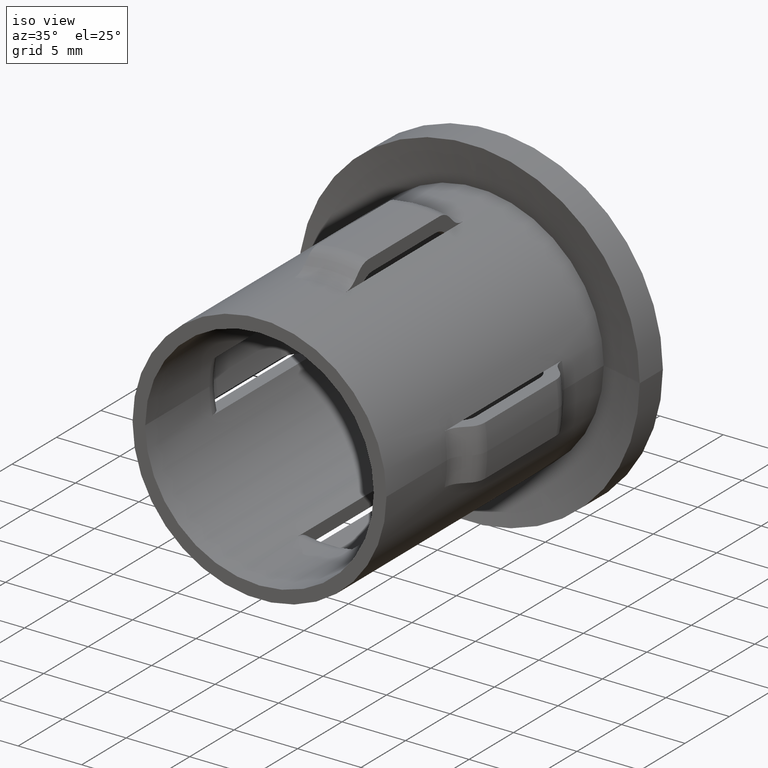
[diagram: clean part render]
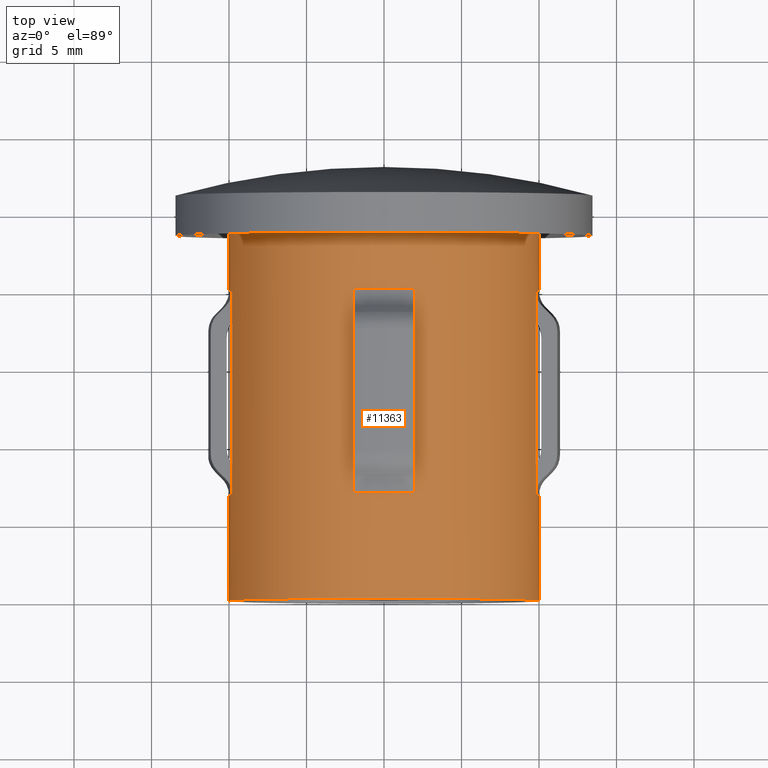
[diagram: tour spotlight — one face highlighted and labeled with its STEP entity id]
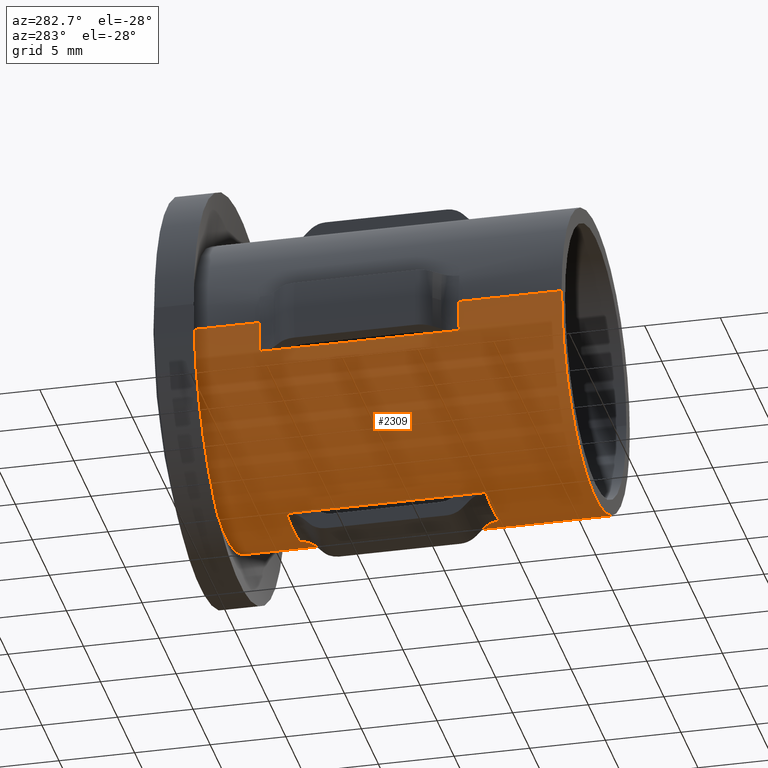
[diagram: tour spotlight — one face highlighted and labeled with its STEP entity id]
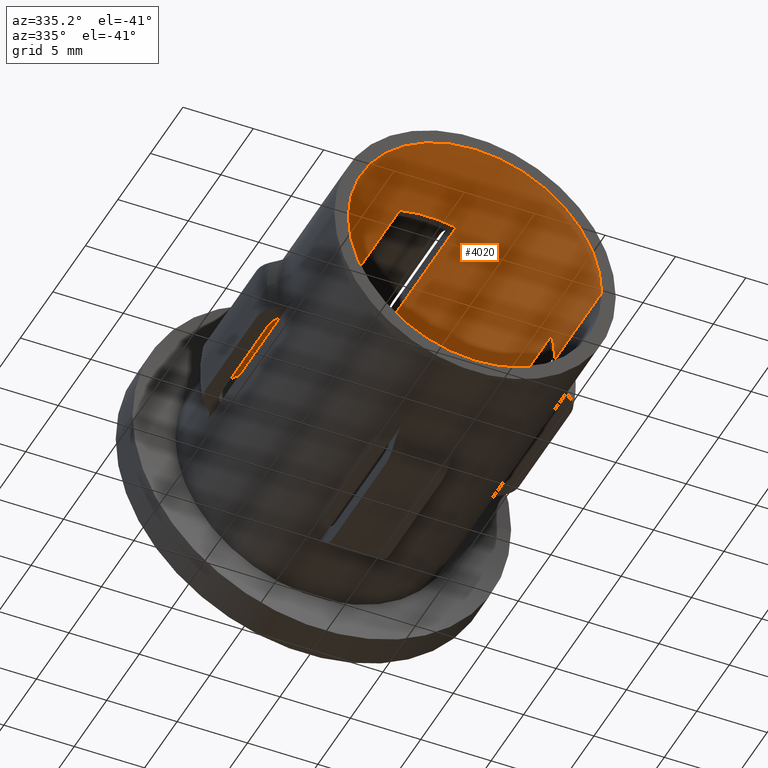
[diagram: tour spotlight — one face highlighted and labeled with its STEP entity id]
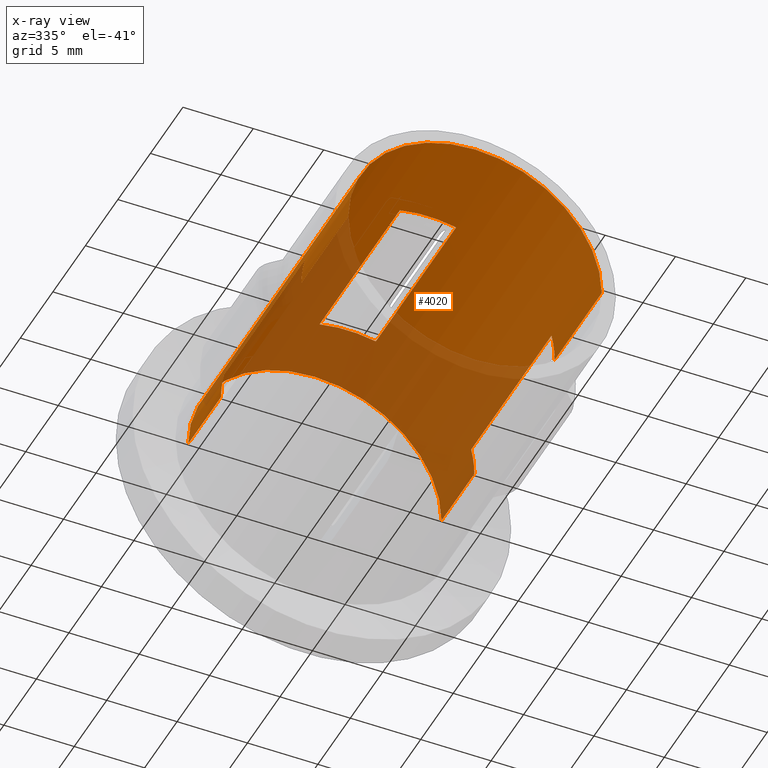
[diagram: x-ray of the same camera — body ghosted, this tour face saturated]
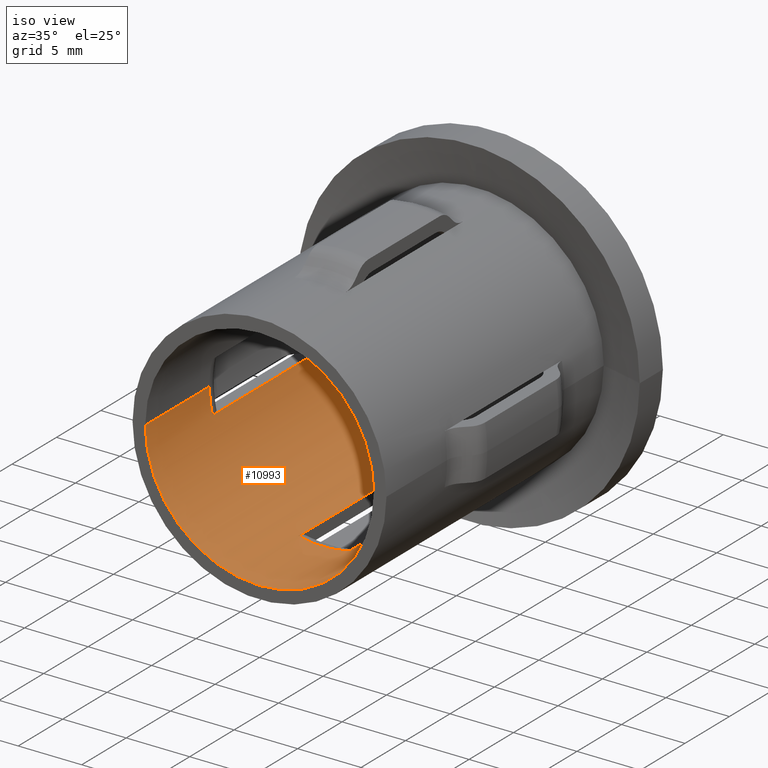
[diagram: tour spotlight — one face highlighted and labeled with its STEP entity id]
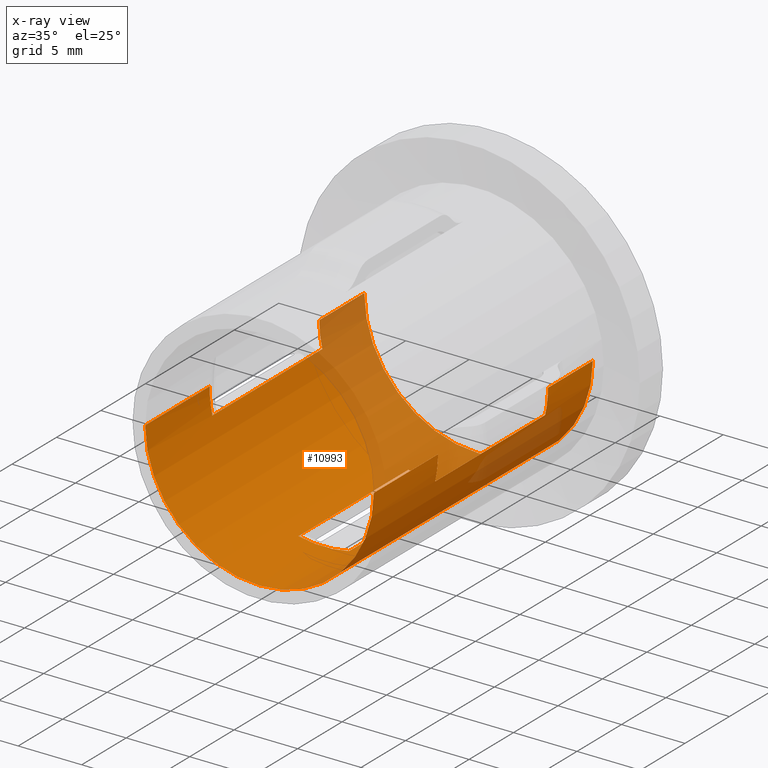
[diagram: x-ray of the same camera — body ghosted, this tour face saturated]
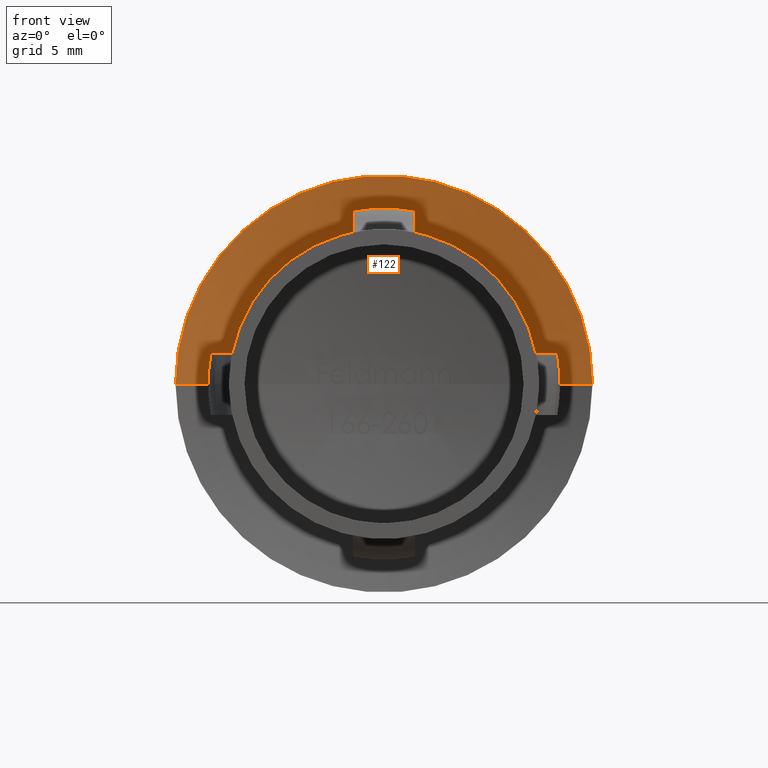
[diagram: tour spotlight — one face highlighted and labeled with its STEP entity id]
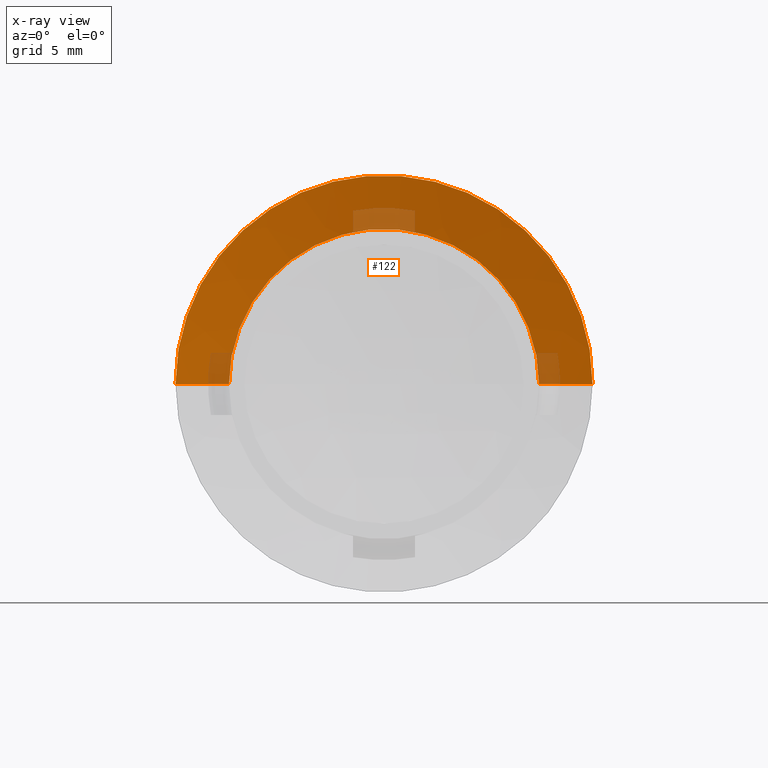
[diagram: x-ray of the same camera — body ghosted, this tour face saturated]
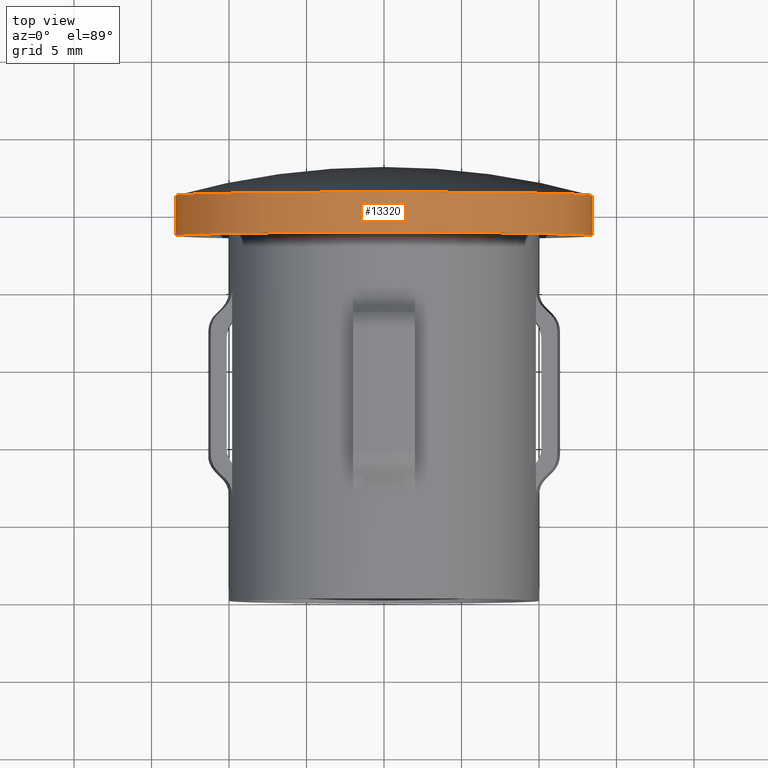
[diagram: tour spotlight — one face highlighted and labeled with its STEP entity id]
A machine part: a face-by-face anatomy tour. The part has 306 B-rep faces; the first image is the clean iso view, then the 6 largest visible faces are spotlighted one at a time (largest first), each with its STEP entity span.

Face 1 — top view, entity #11363. In plain terms, the highlighted cylindrical surface (partial cylindrical patch) has radius 10 mm, axis along (-0, -1, -0).
Definition (entity closure, byte-faithful):
#187 = CARTESIAN_POINT ( 'NONE',  ( -1.999999999999998668, 20.00000000000000000, 9.797958971132805672 ) ) ;
#327 = ORIENTED_EDGE ( 'NONE', *, *, #8506, .T. ) ;
#338 = CARTESIAN_POINT ( 'NONE',  ( -10.00000000000000178, 24.43543905251682347, 1.435898372000274385E-15 ) ) ;
#402 = ORIENTED_EDGE ( 'NONE', *, *, #7923, .F. ) ;
#541 = VERTEX_POINT ( 'NONE', #11013 ) ;
#708 = VERTEX_POINT ( 'NONE', #6816 ) ;
#713 = ORIENTED_EDGE ( 'NONE', *, *, #7310, .T. ) ;
#775 = LINE ( 'NONE', #8826, #9063 ) ;
#786 = DIRECTION ( 'NONE',  ( 1.000000000000000000, -2.862293735361717112E-15, 0.000000000000000000 ) ) ;
#897 = EDGE_CURVE ( 'NONE', #5782, #708, #2902, .T. ) ;
#995 = LINE ( 'NONE', #13027, #12193 ) ;
#1077 = ORIENTED_EDGE ( 'NONE', *, *, #5511, .T. ) ;
#1196 = EDGE_CURVE ( 'NONE', #9431, #9824, #3924, .T. ) ;
#1240 = LINE ( 'NONE', #11105, #7849 ) ;
#1353 = CIRCLE ( 'NONE', #6642, 10.00000000000005151 ) ;
#1386 = VERTEX_POINT ( 'NONE', #7418 ) ;
#1405 = VERTEX_POINT ( 'NONE', #4152 ) ;
#1431 = CARTESIAN_POINT ( 'NONE',  ( 10.00000000000006395, 25.49999999999997158, 0.000000000000000000 ) ) ;
#1442 = LINE ( 'NONE', #4767, #9414 ) ;
#1580 = CARTESIAN_POINT ( 'NONE',  ( 9.797958971132718631, 17.95621376472045938, 1.999999999999997335 ) ) ;
#1674 = EDGE_CURVE ( 'NONE', #2542, #8515, #10533, .T. ) ;
#1811 = CARTESIAN_POINT ( 'NONE',  ( -10.00000000000003375, 20.00000000000005684, 1.224646799147358976E-15 ) ) ;
#1825 = CARTESIAN_POINT ( 'NONE',  ( 2.000000000000000444, 8.858504861040950473, 9.797958971132775474 ) ) ;
#1838 = EDGE_CURVE ( 'NONE', #1405, #1386, #1353, .T. ) ;
#1848 = CARTESIAN_POINT ( 'NONE',  ( 0.000000000000000000, 25.50000000000000000, 0.000000000000000000 ) ) ;
#1898 = CARTESIAN_POINT ( 'NONE',  ( -1.999999999999998668, 20.00000000000000000, 9.797958971132805672 ) ) ;
#1942 = ORIENTED_EDGE ( 'NONE', *, *, #8373, .T. ) ;
#1971 = VECTOR ( 'NONE', #12896, 1000.000000000000000 ) ;
#1986 = CIRCLE ( 'NONE', #6466, 10.00000000000001776 ) ;
#2027 = DIRECTION ( 'NONE',  ( -2.449293598294745364E-17, -1.000000000000000000, 0.000000000000000000 ) ) ;
#2110 = CARTESIAN_POINT ( 'NONE',  ( -10.00000000000010836, 6.814718625761486237, 1.224646799147363512E-15 ) ) ;
#2128 = DIRECTION ( 'NONE',  ( 1.000000000000000000, -2.775557561562886618E-15, 0.000000000000000000 ) ) ;
#2188 = CARTESIAN_POINT ( 'NONE',  ( 9.797958971132718631, 20.00000000000000000, 1.999999999999997335 ) ) ;
#2246 = VERTEX_POINT ( 'NONE', #1825 ) ;
#2342 = VERTEX_POINT ( 'NONE', #6588 ) ;
#2480 = DIRECTION ( 'NONE',  ( 1.000000000000000000, -2.904862207577519813E-15, 0.000000000000000000 ) ) ;
#2506 = DIRECTION ( 'NONE',  ( -2.904862207577519418E-15, -1.000000000000000000, -0.000000000000000000 ) ) ;
#2542 = VERTEX_POINT ( 'NONE', #338 ) ;
#2614 = CIRCLE ( 'NONE', #7483, 10.00000000000005151 ) ;
#2765 = VECTOR ( 'NONE', #11042, 1000.000000000000000 ) ;
#2902 = LINE ( 'NONE', #2920, #11581 ) ;
#2920 = CARTESIAN_POINT ( 'NONE',  ( -9.797958971132866068, 20.00000000000000000, 1.999999999999997335 ) ) ;
#2930 = VERTEX_POINT ( 'NONE', #13078 ) ;
#2973 = CARTESIAN_POINT ( 'NONE',  ( 9.999999999999998224, 6.814718625761428505, 0.000000000000000000 ) ) ;
#2998 = LINE ( 'NONE', #3421, #10305 ) ;
#3032 = CARTESIAN_POINT ( 'NONE',  ( 2.000000000000000888, 17.95621376472052333, 9.797958971132775474 ) ) ;
#3150 = CARTESIAN_POINT ( 'NONE',  ( -1.597674214167626766E-14, 20.00000000000002842, 0.000000000000000000 ) ) ;
#3302 = ORIENTED_EDGE ( 'NONE', *, *, #1838, .T. ) ;
#3378 = DIRECTION ( 'NONE',  ( -2.449293598294745364E-17, -1.000000000000000000, -0.000000000000000000 ) ) ;
#3417 = ORIENTED_EDGE ( 'NONE', *, *, #13760, .F. ) ;
#3421 = CARTESIAN_POINT ( 'NONE',  ( -9.797958971132866068, 20.00000000000000000, 1.999999999999997335 ) ) ;
#3675 = DIRECTION ( 'NONE',  ( -2.449293598294745364E-17, -1.000000000000000000, -0.000000000000000000 ) ) ;
#3680 = ORIENTED_EDGE ( 'NONE', *, *, #12617, .T. ) ;
#3773 = CIRCLE ( 'NONE', #8556, 10.00000000000001776 ) ;
#3788 = DIRECTION ( 'NONE',  ( -2.449293598294745364E-17, -1.000000000000000000, -0.000000000000000000 ) ) ;
#3811 = VERTEX_POINT ( 'NONE', #1580 ) ;
#3851 = VECTOR ( 'NONE', #3788, 1000.000000000000000 ) ;
#3872 = DIRECTION ( 'NONE',  ( -2.449293598294745364E-17, -1.000000000000000000, -0.000000000000000000 ) ) ;
#3924 = LINE ( 'NONE', #1431, #12079 ) ;
#4023 = VERTEX_POINT ( 'NONE', #4575 ) ;
#4107 = CARTESIAN_POINT ( 'NONE',  ( -9.797958971132866068, 17.95621376472045583, 1.999999999999997335 ) ) ;
#4152 = CARTESIAN_POINT ( 'NONE',  ( 2.000000000000000444, 6.814718625761425841, 9.797958971132775474 ) ) ;
#4255 = CARTESIAN_POINT ( 'NONE',  ( -1.999999999999999112, 8.858504861040989553, 9.797958971132805672 ) ) ;
#4275 = VERTEX_POINT ( 'NONE', #11503 ) ;
#4369 = VECTOR ( 'NONE', #3872, 1000.000000000000000 ) ;
#4485 = ORIENTED_EDGE ( 'NONE', *, *, #5791, .F. ) ;
#4575 = CARTESIAN_POINT ( 'NONE',  ( -9.797958971132866068, 20.00000000000000000, 1.999999999999997335 ) ) ;
#4576 = CYLINDRICAL_SURFACE ( 'NONE', #9373, 10.00000000000006395 ) ;
#4730 = CARTESIAN_POINT ( 'NONE',  ( -1.999999999999998668, 17.95621376472045938, 9.797958971132805672 ) ) ;
#4765 = DIRECTION ( 'NONE',  ( -2.904862207577519418E-15, -1.000000000000000000, -0.000000000000000000 ) ) ;
#4767 = CARTESIAN_POINT ( 'NONE',  ( -10.00000000000006395, 25.50000000000002487, 1.224646799147361145E-15 ) ) ;
#4811 = DIRECTION ( 'NONE',  ( -2.904862207577519418E-15, -1.000000000000000000, -0.000000000000000000 ) ) ;
#4914 = AXIS2_PLACEMENT_3D ( 'NONE', #8951, #4765, #2480 ) ;
#4976 = EDGE_CURVE ( 'NONE', #10741, #12352, #995, .T. ) ;
#4979 = EDGE_LOOP ( 'NONE', ( #3417, #7750, #10337, #11762, #327, #1942, #1077, #3302 ) ) ;
#4992 = DIRECTION ( 'NONE',  ( -2.904862207577519418E-15, -1.000000000000000000, -0.000000000000000000 ) ) ;
#5030 = AXIS2_PLACEMENT_3D ( 'NONE', #11245, #2506, #12290 ) ;
#5117 = DIRECTION ( 'NONE',  ( -2.904862207577519418E-15, -1.000000000000000000, -0.000000000000000000 ) ) ;
#5143 = DIRECTION ( 'NONE',  ( -2.904862207577519418E-15, -1.000000000000000000, -0.000000000000000000 ) ) ;
#5268 = FACE_BOUND ( 'NONE', #4979, .T. ) ;
#5346 = ORIENTED_EDGE ( 'NONE', *, *, #12217, .T. ) ;
#5353 = CIRCLE ( 'NONE', #6712, 9.999999999999998224 ) ;
#5380 = DIRECTION ( 'NONE',  ( 1.000000000000000000, -2.862293735361717112E-15, 0.000000000000000000 ) ) ;
#5410 = VECTOR ( 'NONE', #9481, 1000.000000000000000 ) ;
#5511 = EDGE_CURVE ( 'NONE', #2246, #1405, #9624, .T. ) ;
#5531 = EDGE_CURVE ( 'NONE', #2342, #10741, #6267, .T. ) ;
#5539 = VERTEX_POINT ( 'NONE', #3032 ) ;
#5546 = LINE ( 'NONE', #6248, #13482 ) ;
#5782 = VERTEX_POINT ( 'NONE', #4107 ) ;
#5791 = EDGE_CURVE ( 'NONE', #2930, #541, #1986, .T. ) ;
#5976 = EDGE_CURVE ( 'NONE', #4023, #5782, #2998, .T. ) ;
#6022 = EDGE_CURVE ( 'NONE', #9824, #10247, #13696, .T. ) ;
#6048 = CIRCLE ( 'NONE', #5030, 10.00000000000005151 ) ;
#6077 = CIRCLE ( 'NONE', #10276, 10.00000000000001776 ) ;
#6090 = DIRECTION ( 'NONE',  ( 1.000000000000000000, -2.775557561562886618E-15, 0.000000000000000000 ) ) ;
#6178 = DIRECTION ( 'NONE',  ( -2.904862207577519418E-15, -1.000000000000000000, -0.000000000000000000 ) ) ;
#6186 = EDGE_CURVE ( 'NONE', #13155, #2930, #7257, .T. ) ;
#6248 = CARTESIAN_POINT ( 'NONE',  ( 2.000000000000000888, 20.00000000000000000, 9.797958971132775474 ) ) ;
#6267 = LINE ( 'NONE', #1898, #12185 ) ;
#6450 = DIRECTION ( 'NONE',  ( -2.904862207577519418E-15, -1.000000000000000000, -0.000000000000000000 ) ) ;
#6466 = AXIS2_PLACEMENT_3D ( 'NONE', #3150, #6450, #2128 ) ;
#6501 = EDGE_CURVE ( 'NONE', #541, #3811, #7247, .T. ) ;
#6508 = CARTESIAN_POINT ( 'NONE',  ( -5.427816770197767608E-14, 6.814718625761457815, 0.000000000000000000 ) ) ;
#6588 = CARTESIAN_POINT ( 'NONE',  ( -2.000000000000000444, 20.00000000000003553, 9.797958971132734618 ) ) ;
#6642 = AXIS2_PLACEMENT_3D ( 'NONE', #6508, #7440, #5380 ) ;
#6674 = DIRECTION ( 'NONE',  ( -2.449293598294745364E-17, -1.000000000000000000, 0.000000000000000000 ) ) ;
#6693 = ORIENTED_EDGE ( 'NONE', *, *, #6942, .F. ) ;
#6704 = EDGE_CURVE ( 'NONE', #11566, #2342, #6077, .T. ) ;
#6712 = AXIS2_PLACEMENT_3D ( 'NONE', #11358, #10207, #10310 ) ;
#6816 = CARTESIAN_POINT ( 'NONE',  ( -9.797958971132866068, 8.858504861041035738, 1.999999999999997335 ) ) ;
#6836 = CARTESIAN_POINT ( 'NONE',  ( 10.00000000000000178, -1.293046460146503919E-15, 0.000000000000000000 ) ) ;
#6942 = EDGE_CURVE ( 'NONE', #13740, #4275, #14041, .T. ) ;
#7023 = FACE_OUTER_BOUND ( 'NONE', #13244, .T. ) ;
#7230 = LINE ( 'NONE', #2188, #1971 ) ;
#7239 = DIRECTION ( 'NONE',  ( -2.904862207577519418E-15, -1.000000000000000000, -0.000000000000000000 ) ) ;
#7247 = LINE ( 'NONE', #12107, #8750 ) ;
#7257 = LINE ( 'NONE', #7313, #5410 ) ;
#7306 = DIRECTION ( 'NONE',  ( 1.000000000000000000, -2.775557561562873602E-15, 0.000000000000000000 ) ) ;
#7310 = EDGE_CURVE ( 'NONE', #7390, #10247, #1442, .T. ) ;
#7313 = CARTESIAN_POINT ( 'NONE',  ( 10.00000000000006395, 25.49999999999997158, 0.000000000000000000 ) ) ;
#7390 = VERTEX_POINT ( 'NONE', #2110 ) ;
#7418 = CARTESIAN_POINT ( 'NONE',  ( -1.999999999999999112, 6.814718625761425841, 9.797958971132805672 ) ) ;
#7440 = DIRECTION ( 'NONE',  ( -2.904862207577519418E-15, -1.000000000000000000, -0.000000000000000000 ) ) ;
#7483 = AXIS2_PLACEMENT_3D ( 'NONE', #13721, #5117, #786 ) ;
#7542 = DIRECTION ( 'NONE',  ( -2.904862207577519418E-15, -1.000000000000000000, -0.000000000000000000 ) ) ;
#7750 = ORIENTED_EDGE ( 'NONE', *, *, #4976, .F. ) ;
#7797 = CARTESIAN_POINT ( 'NONE',  ( 9.797958971132718631, 8.858504861040989553, 1.999999999999997335 ) ) ;
#7843 = ORIENTED_EDGE ( 'NONE', *, *, #6186, .F. ) ;
#7849 = VECTOR ( 'NONE', #3675, 1000.000000000000000 ) ;
#7923 = EDGE_CURVE ( 'NONE', #3811, #13740, #7230, .T. ) ;
#8335 = CARTESIAN_POINT ( 'NONE',  ( -9.797958971132866068, 6.814718625761425841, 1.999999999999997335 ) ) ;
#8343 = ORIENTED_EDGE ( 'NONE', *, *, #5976, .T. ) ;
#8373 = EDGE_CURVE ( 'NONE', #5539, #2246, #775, .T. ) ;
#8506 = EDGE_CURVE ( 'NONE', #11566, #5539, #5546, .T. ) ;
#8515 = VERTEX_POINT ( 'NONE', #1811 ) ;
#8556 = AXIS2_PLACEMENT_3D ( 'NONE', #12572, #6178, #6090 ) ;
#8642 = ORIENTED_EDGE ( 'NONE', *, *, #6501, .F. ) ;
#8750 = VECTOR ( 'NONE', #13602, 1000.000000000000000 ) ;
#8811 = EDGE_CURVE ( 'NONE', #11359, #7390, #6048, .T. ) ;
#8826 = CARTESIAN_POINT ( 'NONE',  ( 2.000000000000000888, 20.00000000000000000, 9.797958971132775474 ) ) ;
#8951 = CARTESIAN_POINT ( 'NONE',  ( -7.407398629322664971E-14, 2.775557561562891351E-14, 0.000000000000000000 ) ) ;
#9060 = CARTESIAN_POINT ( 'NONE',  ( 2.000000000000000888, 20.00000000000000000, 9.797958971132775474 ) ) ;
#9063 = VECTOR ( 'NONE', #6674, 1000.000000000000000 ) ;
#9373 = AXIS2_PLACEMENT_3D ( 'NONE', #1848, #5143, #7306 ) ;
#9414 = VECTOR ( 'NONE', #4811, 1000.000000000000000 ) ;
#9431 = VERTEX_POINT ( 'NONE', #2973 ) ;
#9481 = DIRECTION ( 'NONE',  ( -2.904862207577519418E-15, -1.000000000000000000, -0.000000000000000000 ) ) ;
#9624 = LINE ( 'NONE', #10541, #3851 ) ;
#9758 = ORIENTED_EDGE ( 'NONE', *, *, #1196, .F. ) ;
#9824 = VERTEX_POINT ( 'NONE', #6836 ) ;
#10086 = ORIENTED_EDGE ( 'NONE', *, *, #6022, .F. ) ;
#10127 = DIRECTION ( 'NONE',  ( -2.449293598294745364E-17, -1.000000000000000000, 0.000000000000000000 ) ) ;
#10207 = DIRECTION ( 'NONE',  ( -2.904862207577519418E-15, -1.000000000000000000, -0.000000000000000000 ) ) ;
#10247 = VERTEX_POINT ( 'NONE', #11021 ) ;
#10276 = AXIS2_PLACEMENT_3D ( 'NONE', #11827, #7542, #11875 ) ;
#10304 = DIRECTION ( 'NONE',  ( -2.449293598294745364E-17, -1.000000000000000000, -0.000000000000000000 ) ) ;
#10305 = VECTOR ( 'NONE', #3378, 1000.000000000000000 ) ;
#10310 = DIRECTION ( 'NONE',  ( 1.000000000000000000, -2.775557561562891745E-15, 0.000000000000000000 ) ) ;
#10337 = ORIENTED_EDGE ( 'NONE', *, *, #5531, .F. ) ;
#10494 = EDGE_CURVE ( 'NONE', #4023, #8515, #3773, .T. ) ;
#10530 = CARTESIAN_POINT ( 'NONE',  ( -10.00000000000006395, 25.50000000000002487, 1.224646799147361145E-15 ) ) ;
#10533 = LINE ( 'NONE', #10530, #12578 ) ;
#10541 = CARTESIAN_POINT ( 'NONE',  ( 2.000000000000000888, 20.00000000000000000, 9.797958971132775474 ) ) ;
#10597 = DIRECTION ( 'NONE',  ( -2.449293598294745364E-17, -1.000000000000000000, -0.000000000000000000 ) ) ;
#10741 = VERTEX_POINT ( 'NONE', #4730 ) ;
#11013 = CARTESIAN_POINT ( 'NONE',  ( 9.797958971132718631, 20.00000000000000000, 1.999999999999997335 ) ) ;
#11021 = CARTESIAN_POINT ( 'NONE',  ( -10.00000000000015099, 5.680419769140434435E-14, 1.224646799147367062E-15 ) ) ;
#11042 = DIRECTION ( 'NONE',  ( -2.449293598294745364E-17, -1.000000000000000000, -0.000000000000000000 ) ) ;
#11105 = CARTESIAN_POINT ( 'NONE',  ( -9.797958971132866068, 20.00000000000000000, 1.999999999999997335 ) ) ;
#11245 = CARTESIAN_POINT ( 'NONE',  ( -5.427816770197767608E-14, 6.814718625761457815, 0.000000000000000000 ) ) ;
#11358 = CARTESIAN_POINT ( 'NONE',  ( -3.092402864006866518E-15, 24.43543905251679504, 0.000000000000000000 ) ) ;
#11359 = VERTEX_POINT ( 'NONE', #8335 ) ;
#11363 = ADVANCED_FACE ( 'NONE', ( #5268, #7023 ), #4576, .T. ) ;
#11503 = CARTESIAN_POINT ( 'NONE',  ( 9.797958971132718631, 6.814718625761425841, 1.999999999999997335 ) ) ;
#11566 = VERTEX_POINT ( 'NONE', #9060 ) ;
#11581 = VECTOR ( 'NONE', #2027, 1000.000000000000000 ) ;
#11725 = CARTESIAN_POINT ( 'NONE',  ( 9.999999999999994671, 24.43543905251677018, 0.000000000000000000 ) ) ;
#11762 = ORIENTED_EDGE ( 'NONE', *, *, #6704, .F. ) ;
#11827 = CARTESIAN_POINT ( 'NONE',  ( -1.597674214167626766E-14, 20.00000000000002842, 0.000000000000000000 ) ) ;
#11875 = DIRECTION ( 'NONE',  ( 1.000000000000000000, -2.775557561562886618E-15, 0.000000000000000000 ) ) ;
#12079 = VECTOR ( 'NONE', #7239, 1000.000000000000000 ) ;
#12107 = CARTESIAN_POINT ( 'NONE',  ( 9.797958971132718631, 20.00000000000000000, 1.999999999999997335 ) ) ;
#12112 = LINE ( 'NONE', #187, #2765 ) ;
#12185 = VECTOR ( 'NONE', #10304, 1000.000000000000000 ) ;
#12193 = VECTOR ( 'NONE', #10127, 1000.000000000000000 ) ;
#12217 = EDGE_CURVE ( 'NONE', #9431, #4275, #2614, .T. ) ;
#12290 = DIRECTION ( 'NONE',  ( 1.000000000000000000, -2.862293735361717112E-15, 0.000000000000000000 ) ) ;
#12352 = VERTEX_POINT ( 'NONE', #4255 ) ;
#12389 = ORIENTED_EDGE ( 'NONE', *, *, #8811, .T. ) ;
#12460 = ORIENTED_EDGE ( 'NONE', *, *, #897, .T. ) ;
#12572 = CARTESIAN_POINT ( 'NONE',  ( -1.597674214167626766E-14, 20.00000000000002842, 0.000000000000000000 ) ) ;
#12578 = VECTOR ( 'NONE', #4992, 1000.000000000000000 ) ;
#12583 = ORIENTED_EDGE ( 'NONE', *, *, #1674, .T. ) ;
#12617 = EDGE_CURVE ( 'NONE', #13155, #2542, #5353, .T. ) ;
#12896 = DIRECTION ( 'NONE',  ( -2.449293598294745364E-17, -1.000000000000000000, 0.000000000000000000 ) ) ;
#12989 = EDGE_CURVE ( 'NONE', #708, #11359, #1240, .T. ) ;
#13027 = CARTESIAN_POINT ( 'NONE',  ( -1.999999999999998668, 20.00000000000000000, 9.797958971132805672 ) ) ;
#13058 = ORIENTED_EDGE ( 'NONE', *, *, #10494, .F. ) ;
#13078 = CARTESIAN_POINT ( 'NONE',  ( 10.00000000000000178, 20.00000000000000000, 0.000000000000000000 ) ) ;
#13155 = VERTEX_POINT ( 'NONE', #11725 ) ;
#13244 = EDGE_LOOP ( 'NONE', ( #3680, #12583, #13058, #8343, #12460, #13985, #12389, #713, #10086, #9758, #5346, #6693, #402, #8642, #4485, #7843 ) ) ;
#13482 = VECTOR ( 'NONE', #10597, 1000.000000000000000 ) ;
#13542 = CARTESIAN_POINT ( 'NONE',  ( 9.797958971132718631, 20.00000000000000000, 1.999999999999997335 ) ) ;
#13602 = DIRECTION ( 'NONE',  ( -2.449293598294745364E-17, -1.000000000000000000, -0.000000000000000000 ) ) ;
#13696 = CIRCLE ( 'NONE', #4914, 10.00000000000007638 ) ;
#13721 = CARTESIAN_POINT ( 'NONE',  ( -5.427816770197767608E-14, 6.814718625761457815, 0.000000000000000000 ) ) ;
#13740 = VERTEX_POINT ( 'NONE', #7797 ) ;
#13760 = EDGE_CURVE ( 'NONE', #12352, #1386, #12112, .T. ) ;
#13985 = ORIENTED_EDGE ( 'NONE', *, *, #12989, .T. ) ;
#14041 = LINE ( 'NONE', #13542, #4369 ) ;

Face 2 — auxiliary view, entity #2309. In plain terms, the highlighted cylindrical surface (partial cylindrical patch) has radius 10 mm, axis along (-0, -1, -0).
Definition (entity closure, byte-faithful):
#21 = AXIS2_PLACEMENT_3D ( 'NONE', #4993, #11445, #9272 ) ;
#81 = EDGE_CURVE ( 'NONE', #4327, #3246, #11936, .T. ) ;
#98 = DIRECTION ( 'NONE',  ( -2.449293598294745364E-17, -1.000000000000000000, 0.000000000000000000 ) ) ;
#191 = DIRECTION ( 'NONE',  ( 1.000000000000000000, -2.775557561562891745E-15, 0.000000000000000000 ) ) ;
#212 = EDGE_CURVE ( 'NONE', #8515, #2766, #8680, .T. ) ;
#338 = CARTESIAN_POINT ( 'NONE',  ( -10.00000000000000178, 24.43543905251682347, 1.435898372000274385E-15 ) ) ;
#561 = DIRECTION ( 'NONE',  ( -2.449293598294745364E-17, -1.000000000000000000, -0.000000000000000000 ) ) ;
#571 = DIRECTION ( 'NONE',  ( -2.904862207577519418E-15, -1.000000000000000000, -0.000000000000000000 ) ) ;
#586 = VECTOR ( 'NONE', #5032, 1000.000000000000000 ) ;
#647 = EDGE_CURVE ( 'NONE', #1229, #6467, #7968, .T. ) ;
#1196 = EDGE_CURVE ( 'NONE', #9431, #9824, #3924, .T. ) ;
#1222 = DIRECTION ( 'NONE',  ( -2.449293598294745364E-17, -1.000000000000000000, 0.000000000000000000 ) ) ;
#1229 = VERTEX_POINT ( 'NONE', #2571 ) ;
#1294 = CIRCLE ( 'NONE', #9519, 10.00000000000001776 ) ;
#1431 = CARTESIAN_POINT ( 'NONE',  ( 10.00000000000006395, 25.49999999999997158, 0.000000000000000000 ) ) ;
#1442 = LINE ( 'NONE', #4767, #9414 ) ;
#1546 = CARTESIAN_POINT ( 'NONE',  ( 9.797958971132716854, 20.00000000000000000, -2.000000000000002220 ) ) ;
#1674 = EDGE_CURVE ( 'NONE', #2542, #8515, #10533, .T. ) ;
#1746 = CARTESIAN_POINT ( 'NONE',  ( 9.797958971132716854, 20.00000000000000000, -2.000000000000002220 ) ) ;
#1811 = CARTESIAN_POINT ( 'NONE',  ( -10.00000000000003375, 20.00000000000005684, 1.224646799147358976E-15 ) ) ;
#2110 = CARTESIAN_POINT ( 'NONE',  ( -10.00000000000010836, 6.814718625761486237, 1.224646799147363512E-15 ) ) ;
#2187 = VECTOR ( 'NONE', #561, 1000.000000000000000 ) ;
#2225 = AXIS2_PLACEMENT_3D ( 'NONE', #13243, #8883, #191 ) ;
#2269 = EDGE_CURVE ( 'NONE', #3246, #9431, #7785, .T. ) ;
#2305 = CIRCLE ( 'NONE', #2371, 10.00000000000005151 ) ;
#2309 = ADVANCED_FACE ( 'NONE', ( #9132, #4931 ), #3719, .T. ) ;
#2321 = ORIENTED_EDGE ( 'NONE', *, *, #10242, .F. ) ;
#2371 = AXIS2_PLACEMENT_3D ( 'NONE', #4376, #6422, #5471 ) ;
#2470 = VECTOR ( 'NONE', #4217, 1000.000000000000000 ) ;
#2505 = DIRECTION ( 'NONE',  ( -2.449293598294745364E-17, -1.000000000000000000, -0.000000000000000000 ) ) ;
#2542 = VERTEX_POINT ( 'NONE', #338 ) ;
#2571 = CARTESIAN_POINT ( 'NONE',  ( -9.797958971132864292, 17.95621376472045938, -2.000000000000002220 ) ) ;
#2766 = VERTEX_POINT ( 'NONE', #11682 ) ;
#2872 = VERTEX_POINT ( 'NONE', #6509 ) ;
#2930 = VERTEX_POINT ( 'NONE', #13078 ) ;
#2950 = VECTOR ( 'NONE', #2505, 1000.000000000000000 ) ;
#2973 = CARTESIAN_POINT ( 'NONE',  ( 9.999999999999998224, 6.814718625761428505, 0.000000000000000000 ) ) ;
#3034 = VECTOR ( 'NONE', #98, 1000.000000000000000 ) ;
#3099 = ORIENTED_EDGE ( 'NONE', *, *, #13301, .T. ) ;
#3246 = VERTEX_POINT ( 'NONE', #12560 ) ;
#3304 = EDGE_CURVE ( 'NONE', #3424, #5459, #12057, .T. ) ;
#3326 = LINE ( 'NONE', #1746, #10471 ) ;
#3424 = VERTEX_POINT ( 'NONE', #4677 ) ;
#3480 = CIRCLE ( 'NONE', #6032, 10.00000000000005151 ) ;
#3576 = VERTEX_POINT ( 'NONE', #4049 ) ;
#3630 = CARTESIAN_POINT ( 'NONE',  ( -7.407398629322664971E-14, 2.775557561562891351E-14, 0.000000000000000000 ) ) ;
#3719 = CYLINDRICAL_SURFACE ( 'NONE', #5105, 10.00000000000006395 ) ;
#3814 = ORIENTED_EDGE ( 'NONE', *, *, #1674, .F. ) ;
#3924 = LINE ( 'NONE', #1431, #12079 ) ;
#4004 = CARTESIAN_POINT ( 'NONE',  ( -1.999999999999998224, 20.00000000000000000, -9.797958971132805672 ) ) ;
#4026 = ORIENTED_EDGE ( 'NONE', *, *, #3304, .T. ) ;
#4049 = CARTESIAN_POINT ( 'NONE',  ( -9.797958971132864292, 6.814718625761425841, -2.000000000000002220 ) ) ;
#4144 = CIRCLE ( 'NONE', #9267, 10.00000000000007638 ) ;
#4217 = DIRECTION ( 'NONE',  ( -2.449293598294745364E-17, -1.000000000000000000, -0.000000000000000000 ) ) ;
#4327 = VERTEX_POINT ( 'NONE', #6097 ) ;
#4334 = ORIENTED_EDGE ( 'NONE', *, *, #7310, .F. ) ;
#4376 = CARTESIAN_POINT ( 'NONE',  ( -5.427816770197767608E-14, 6.814718625761457815, 0.000000000000000000 ) ) ;
#4459 = ORIENTED_EDGE ( 'NONE', *, *, #647, .F. ) ;
#4492 = DIRECTION ( 'NONE',  ( 1.000000000000000000, -2.775557561562886618E-15, 0.000000000000000000 ) ) ;
#4677 = CARTESIAN_POINT ( 'NONE',  ( -1.999999999999998224, 17.95621376472048070, -9.797958971132805672 ) ) ;
#4767 = CARTESIAN_POINT ( 'NONE',  ( -10.00000000000006395, 25.50000000000002487, 1.224646799147361145E-15 ) ) ;
#4782 = EDGE_CURVE ( 'NONE', #12294, #12672, #12699, .T. ) ;
#4811 = DIRECTION ( 'NONE',  ( -2.904862207577519418E-15, -1.000000000000000000, -0.000000000000000000 ) ) ;
#4890 = EDGE_CURVE ( 'NONE', #5459, #2872, #11533, .T. ) ;
#4931 = FACE_BOUND ( 'NONE', #9420, .T. ) ;
#4986 = ORIENTED_EDGE ( 'NONE', *, *, #7757, .F. ) ;
#4992 = DIRECTION ( 'NONE',  ( -2.904862207577519418E-15, -1.000000000000000000, -0.000000000000000000 ) ) ;
#4993 = CARTESIAN_POINT ( 'NONE',  ( -1.597674214167626766E-14, 20.00000000000002842, 0.000000000000000000 ) ) ;
#5032 = DIRECTION ( 'NONE',  ( -2.449293598294745364E-17, -1.000000000000000000, -0.000000000000000000 ) ) ;
#5040 = ORIENTED_EDGE ( 'NONE', *, *, #2269, .T. ) ;
#5105 = AXIS2_PLACEMENT_3D ( 'NONE', #13874, #7382, #9537 ) ;
#5195 = LINE ( 'NONE', #6864, #8211 ) ;
#5196 = ORIENTED_EDGE ( 'NONE', *, *, #1196, .T. ) ;
#5410 = VECTOR ( 'NONE', #9481, 1000.000000000000000 ) ;
#5459 = VERTEX_POINT ( 'NONE', #10157 ) ;
#5471 = DIRECTION ( 'NONE',  ( 1.000000000000000000, -2.862293735361717112E-15, 0.000000000000000000 ) ) ;
#5665 = VERTEX_POINT ( 'NONE', #10330 ) ;
#5908 = CARTESIAN_POINT ( 'NONE',  ( 9.797958971132716854, 17.95621376472054820, -2.000000000000002220 ) ) ;
#5991 = DIRECTION ( 'NONE',  ( 1.000000000000000000, -2.862293735361717112E-15, 0.000000000000000000 ) ) ;
#6032 = AXIS2_PLACEMENT_3D ( 'NONE', #13601, #571, #5991 ) ;
#6097 = CARTESIAN_POINT ( 'NONE',  ( 9.797958971132716854, 8.858504861040902512, -2.000000000000002220 ) ) ;
#6186 = EDGE_CURVE ( 'NONE', #13155, #2930, #7257, .T. ) ;
#6388 = DIRECTION ( 'NONE',  ( 1.000000000000000000, -2.775557561562886618E-15, 0.000000000000000000 ) ) ;
#6397 = EDGE_CURVE ( 'NONE', #7365, #8864, #1294, .T. ) ;
#6422 = DIRECTION ( 'NONE',  ( -2.904862207577519418E-15, -1.000000000000000000, -0.000000000000000000 ) ) ;
#6458 = EDGE_LOOP ( 'NONE', ( #3814, #3099, #10675, #4986, #12853, #12669, #8621, #5040, #5196, #11395, #4334, #7939, #2321, #4459, #8968, #12256 ) ) ;
#6467 = VERTEX_POINT ( 'NONE', #13140 ) ;
#6476 = EDGE_CURVE ( 'NONE', #12672, #4327, #3326, .T. ) ;
#6509 = CARTESIAN_POINT ( 'NONE',  ( -1.999999999999998668, 6.814718625761425841, -9.797958971132805672 ) ) ;
#6556 = DIRECTION ( 'NONE',  ( -2.449293598294745364E-17, -1.000000000000000000, 0.000000000000000000 ) ) ;
#6664 = VECTOR ( 'NONE', #10838, 1000.000000000000000 ) ;
#6836 = CARTESIAN_POINT ( 'NONE',  ( 10.00000000000000178, -1.293046460146503919E-15, 0.000000000000000000 ) ) ;
#6864 = CARTESIAN_POINT ( 'NONE',  ( 2.000000000000000888, 20.00000000000000000, -9.797958971132775474 ) ) ;
#7064 = CARTESIAN_POINT ( 'NONE',  ( -9.797958971132864292, 20.00000000000000000, -2.000000000000002220 ) ) ;
#7119 = EDGE_CURVE ( 'NONE', #8864, #7952, #12008, .T. ) ;
#7239 = DIRECTION ( 'NONE',  ( -2.904862207577519418E-15, -1.000000000000000000, -0.000000000000000000 ) ) ;
#7257 = LINE ( 'NONE', #7313, #5410 ) ;
#7310 = EDGE_CURVE ( 'NONE', #7390, #10247, #1442, .T. ) ;
#7313 = CARTESIAN_POINT ( 'NONE',  ( 10.00000000000006395, 25.49999999999997158, 0.000000000000000000 ) ) ;
#7365 = VERTEX_POINT ( 'NONE', #4004 ) ;
#7367 = ORIENTED_EDGE ( 'NONE', *, *, #4890, .T. ) ;
#7382 = DIRECTION ( 'NONE',  ( -2.904862207577519418E-15, -1.000000000000000000, -0.000000000000000000 ) ) ;
#7390 = VERTEX_POINT ( 'NONE', #2110 ) ;
#7488 = CARTESIAN_POINT ( 'NONE',  ( 2.000000000000000888, 17.95621376472045938, -9.797958971132775474 ) ) ;
#7718 = LINE ( 'NONE', #7064, #10792 ) ;
#7720 = EDGE_CURVE ( 'NONE', #2872, #12815, #3480, .T. ) ;
#7731 = CIRCLE ( 'NONE', #21, 10.00000000000001776 ) ;
#7757 = EDGE_CURVE ( 'NONE', #12294, #2930, #7731, .T. ) ;
#7785 = CIRCLE ( 'NONE', #7965, 10.00000000000005151 ) ;
#7851 = ORIENTED_EDGE ( 'NONE', *, *, #7720, .T. ) ;
#7927 = EDGE_CURVE ( 'NONE', #7390, #3576, #2305, .T. ) ;
#7938 = CARTESIAN_POINT ( 'NONE',  ( 2.000000000000002665, 20.00000000000002132, -9.797958971132727513 ) ) ;
#7939 = ORIENTED_EDGE ( 'NONE', *, *, #7927, .T. ) ;
#7952 = VERTEX_POINT ( 'NONE', #7488 ) ;
#7965 = AXIS2_PLACEMENT_3D ( 'NONE', #12734, #8409, #8456 ) ;
#7968 = LINE ( 'NONE', #11053, #13245 ) ;
#8211 = VECTOR ( 'NONE', #6556, 1000.000000000000000 ) ;
#8322 = DIRECTION ( 'NONE',  ( -2.904862207577519418E-15, -1.000000000000000000, -0.000000000000000000 ) ) ;
#8409 = DIRECTION ( 'NONE',  ( -2.904862207577519418E-15, -1.000000000000000000, -0.000000000000000000 ) ) ;
#8456 = DIRECTION ( 'NONE',  ( 1.000000000000000000, -2.862293735361717112E-15, 0.000000000000000000 ) ) ;
#8508 = CARTESIAN_POINT ( 'NONE',  ( 2.000000000000000888, 20.00000000000000000, -9.797958971132775474 ) ) ;
#8515 = VERTEX_POINT ( 'NONE', #1811 ) ;
#8621 = ORIENTED_EDGE ( 'NONE', *, *, #81, .T. ) ;
#8631 = EDGE_CURVE ( 'NONE', #7365, #3424, #11653, .T. ) ;
#8641 = CARTESIAN_POINT ( 'NONE',  ( 9.797958971132716854, 20.00000000000000000, -2.000000000000002220 ) ) ;
#8680 = CIRCLE ( 'NONE', #10627, 10.00000000000001776 ) ;
#8716 = LINE ( 'NONE', #10680, #2950 ) ;
#8782 = CARTESIAN_POINT ( 'NONE',  ( -1.597674214167626766E-14, 20.00000000000002842, 0.000000000000000000 ) ) ;
#8864 = VERTEX_POINT ( 'NONE', #7938 ) ;
#8883 = DIRECTION ( 'NONE',  ( -2.904862207577519418E-15, -1.000000000000000000, -0.000000000000000000 ) ) ;
#8939 = ORIENTED_EDGE ( 'NONE', *, *, #12006, .F. ) ;
#8968 = ORIENTED_EDGE ( 'NONE', *, *, #11689, .F. ) ;
#9132 = FACE_OUTER_BOUND ( 'NONE', #6458, .T. ) ;
#9220 = DIRECTION ( 'NONE',  ( -2.449293598294745364E-17, -1.000000000000000000, -0.000000000000000000 ) ) ;
#9238 = EDGE_CURVE ( 'NONE', #5665, #12815, #12137, .T. ) ;
#9267 = AXIS2_PLACEMENT_3D ( 'NONE', #3630, #8322, #11539 ) ;
#9272 = DIRECTION ( 'NONE',  ( 1.000000000000000000, -2.775557561562886618E-15, 0.000000000000000000 ) ) ;
#9355 = ORIENTED_EDGE ( 'NONE', *, *, #7119, .F. ) ;
#9414 = VECTOR ( 'NONE', #4811, 1000.000000000000000 ) ;
#9420 = EDGE_LOOP ( 'NONE', ( #7367, #7851, #12790, #8939, #9355, #10918, #11271, #4026 ) ) ;
#9431 = VERTEX_POINT ( 'NONE', #2973 ) ;
#9481 = DIRECTION ( 'NONE',  ( -2.904862207577519418E-15, -1.000000000000000000, -0.000000000000000000 ) ) ;
#9519 = AXIS2_PLACEMENT_3D ( 'NONE', #11792, #12866, #6388 ) ;
#9537 = DIRECTION ( 'NONE',  ( 1.000000000000000000, -2.775557561562873602E-15, 0.000000000000000000 ) ) ;
#9824 = VERTEX_POINT ( 'NONE', #6836 ) ;
#9877 = DIRECTION ( 'NONE',  ( -2.904862207577519418E-15, -1.000000000000000000, -0.000000000000000000 ) ) ;
#10157 = CARTESIAN_POINT ( 'NONE',  ( -1.999999999999998668, 8.858504861040984224, -9.797958971132805672 ) ) ;
#10242 = EDGE_CURVE ( 'NONE', #6467, #3576, #8716, .T. ) ;
#10243 = CIRCLE ( 'NONE', #2225, 9.999999999999998224 ) ;
#10247 = VERTEX_POINT ( 'NONE', #11021 ) ;
#10330 = CARTESIAN_POINT ( 'NONE',  ( 2.000000000000000444, 8.858504861040989553, -9.797958971132775474 ) ) ;
#10388 = EDGE_CURVE ( 'NONE', #10247, #9824, #4144, .T. ) ;
#10471 = VECTOR ( 'NONE', #13655, 1000.000000000000000 ) ;
#10502 = CARTESIAN_POINT ( 'NONE',  ( -1.999999999999998224, 20.00000000000000000, -9.797958971132805672 ) ) ;
#10530 = CARTESIAN_POINT ( 'NONE',  ( -10.00000000000006395, 25.50000000000002487, 1.224646799147361145E-15 ) ) ;
#10533 = LINE ( 'NONE', #10530, #12578 ) ;
#10627 = AXIS2_PLACEMENT_3D ( 'NONE', #8782, #9877, #4492 ) ;
#10675 = ORIENTED_EDGE ( 'NONE', *, *, #6186, .T. ) ;
#10680 = CARTESIAN_POINT ( 'NONE',  ( -9.797958971132864292, 20.00000000000000000, -2.000000000000002220 ) ) ;
#10789 = CARTESIAN_POINT ( 'NONE',  ( 2.000000000000000444, 6.814718625761425841, -9.797958971132775474 ) ) ;
#10792 = VECTOR ( 'NONE', #9220, 1000.000000000000000 ) ;
#10838 = DIRECTION ( 'NONE',  ( -2.449293598294745364E-17, -1.000000000000000000, -0.000000000000000000 ) ) ;
#10918 = ORIENTED_EDGE ( 'NONE', *, *, #6397, .F. ) ;
#11021 = CARTESIAN_POINT ( 'NONE',  ( -10.00000000000015099, 5.680419769140434435E-14, 1.224646799147367062E-15 ) ) ;
#11053 = CARTESIAN_POINT ( 'NONE',  ( -9.797958971132864292, 20.00000000000000000, -2.000000000000002220 ) ) ;
#11271 = ORIENTED_EDGE ( 'NONE', *, *, #8631, .T. ) ;
#11395 = ORIENTED_EDGE ( 'NONE', *, *, #10388, .F. ) ;
#11445 = DIRECTION ( 'NONE',  ( -2.904862207577519418E-15, -1.000000000000000000, -0.000000000000000000 ) ) ;
#11533 = LINE ( 'NONE', #14036, #13704 ) ;
#11539 = DIRECTION ( 'NONE',  ( 1.000000000000000000, -2.904862207577519813E-15, 0.000000000000000000 ) ) ;
#11650 = DIRECTION ( 'NONE',  ( -2.449293598294745364E-17, -1.000000000000000000, -0.000000000000000000 ) ) ;
#11653 = LINE ( 'NONE', #10502, #12150 ) ;
#11682 = CARTESIAN_POINT ( 'NONE',  ( -9.797958971132743500, 20.00000000000005684, -2.000000000000003553 ) ) ;
#11689 = EDGE_CURVE ( 'NONE', #2766, #1229, #7718, .T. ) ;
#11725 = CARTESIAN_POINT ( 'NONE',  ( 9.999999999999994671, 24.43543905251677018, 0.000000000000000000 ) ) ;
#11792 = CARTESIAN_POINT ( 'NONE',  ( -1.597674214167626766E-14, 20.00000000000002842, 0.000000000000000000 ) ) ;
#11911 = DIRECTION ( 'NONE',  ( -2.449293598294745364E-17, -1.000000000000000000, -0.000000000000000000 ) ) ;
#11936 = LINE ( 'NONE', #12952, #6664 ) ;
#12006 = EDGE_CURVE ( 'NONE', #7952, #5665, #5195, .T. ) ;
#12008 = LINE ( 'NONE', #8508, #2470 ) ;
#12057 = LINE ( 'NONE', #12604, #3034 ) ;
#12079 = VECTOR ( 'NONE', #7239, 1000.000000000000000 ) ;
#12137 = LINE ( 'NONE', #13492, #586 ) ;
#12150 = VECTOR ( 'NONE', #11650, 1000.000000000000000 ) ;
#12256 = ORIENTED_EDGE ( 'NONE', *, *, #212, .F. ) ;
#12294 = VERTEX_POINT ( 'NONE', #8641 ) ;
#12560 = CARTESIAN_POINT ( 'NONE',  ( 9.797958971132716854, 6.814718625761425841, -2.000000000000002220 ) ) ;
#12578 = VECTOR ( 'NONE', #4992, 1000.000000000000000 ) ;
#12604 = CARTESIAN_POINT ( 'NONE',  ( -1.999999999999998224, 20.00000000000000000, -9.797958971132805672 ) ) ;
#12669 = ORIENTED_EDGE ( 'NONE', *, *, #6476, .T. ) ;
#12672 = VERTEX_POINT ( 'NONE', #5908 ) ;
#12699 = LINE ( 'NONE', #1546, #2187 ) ;
#12734 = CARTESIAN_POINT ( 'NONE',  ( -5.427816770197767608E-14, 6.814718625761457815, 0.000000000000000000 ) ) ;
#12790 = ORIENTED_EDGE ( 'NONE', *, *, #9238, .F. ) ;
#12815 = VERTEX_POINT ( 'NONE', #10789 ) ;
#12853 = ORIENTED_EDGE ( 'NONE', *, *, #4782, .T. ) ;
#12866 = DIRECTION ( 'NONE',  ( -2.904862207577519418E-15, -1.000000000000000000, -0.000000000000000000 ) ) ;
#12952 = CARTESIAN_POINT ( 'NONE',  ( 9.797958971132716854, 20.00000000000000000, -2.000000000000002220 ) ) ;
#13078 = CARTESIAN_POINT ( 'NONE',  ( 10.00000000000000178, 20.00000000000000000, 0.000000000000000000 ) ) ;
#13140 = CARTESIAN_POINT ( 'NONE',  ( -9.797958971132864292, 8.858504861040989553, -2.000000000000002220 ) ) ;
#13155 = VERTEX_POINT ( 'NONE', #11725 ) ;
#13243 = CARTESIAN_POINT ( 'NONE',  ( -3.092402864006866518E-15, 24.43543905251679504, 0.000000000000000000 ) ) ;
#13245 = VECTOR ( 'NONE', #1222, 1000.000000000000000 ) ;
#13301 = EDGE_CURVE ( 'NONE', #2542, #13155, #10243, .T. ) ;
#13492 = CARTESIAN_POINT ( 'NONE',  ( 2.000000000000000888, 20.00000000000000000, -9.797958971132775474 ) ) ;
#13601 = CARTESIAN_POINT ( 'NONE',  ( -5.427816770197767608E-14, 6.814718625761457815, 0.000000000000000000 ) ) ;
#13655 = DIRECTION ( 'NONE',  ( -2.449293598294745364E-17, -1.000000000000000000, 0.000000000000000000 ) ) ;
#13704 = VECTOR ( 'NONE', #11911, 1000.000000000000000 ) ;
#13874 = CARTESIAN_POINT ( 'NONE',  ( 0.000000000000000000, 25.50000000000000000, 0.000000000000000000 ) ) ;
#14036 = CARTESIAN_POINT ( 'NONE',  ( -1.999999999999998224, 20.00000000000000000, -9.797958971132805672 ) ) ;

Face 3 — auxiliary view, entity #4020. An x-ray twin of the same camera follows (body ghosted, this face saturated) — the face is partly hidden behind the body. In plain terms, the highlighted cylindrical surface (partial cylindrical patch) has radius 9 mm, axis along (-0, -1, -0).
Definition (entity closure, byte-faithful):
#317 = CYLINDRICAL_SURFACE ( 'NONE', #6094, 9.000000000000010658 ) ;
#459 = VECTOR ( 'NONE', #10660, 1000.000000000000000 ) ;
#577 = EDGE_CURVE ( 'NONE', #4884, #823, #2572, .T. ) ;
#598 = CARTESIAN_POINT ( 'NONE',  ( 9.000000000000010658, 25.49999999999997158, 0.000000000000000000 ) ) ;
#718 = CARTESIAN_POINT ( 'NONE',  ( 9.000000000000010658, 25.49999999999997158, 0.000000000000000000 ) ) ;
#767 = AXIS2_PLACEMENT_3D ( 'NONE', #3383, #2314, #4551 ) ;
#823 = VERTEX_POINT ( 'NONE', #12425 ) ;
#934 = DIRECTION ( 'NONE',  ( -2.904862207577519418E-15, -1.000000000000000000, -0.000000000000000000 ) ) ;
#982 = LINE ( 'NONE', #7416, #8082 ) ;
#1021 = VERTEX_POINT ( 'NONE', #8604 ) ;
#1099 = VERTEX_POINT ( 'NONE', #4409 ) ;
#1542 = EDGE_LOOP ( 'NONE', ( #7249, #2526, #8593, #10799, #13183, #11786, #11495, #5632, #7836, #9814, #10776, #13071 ) ) ;
#1661 = LINE ( 'NONE', #718, #4566 ) ;
#1902 = EDGE_CURVE ( 'NONE', #7015, #1021, #4763, .T. ) ;
#1908 = DIRECTION ( 'NONE',  ( 1.000000000000000000, -2.891205793294660873E-15, 0.000000000000000000 ) ) ;
#1930 = EDGE_CURVE ( 'NONE', #3955, #11577, #2723, .T. ) ;
#2022 = CARTESIAN_POINT ( 'NONE',  ( -1.717997546487992550E-14, 19.58578643762693616, 0.000000000000000000 ) ) ;
#2030 = VERTEX_POINT ( 'NONE', #13430 ) ;
#2178 = VERTEX_POINT ( 'NONE', #8066 ) ;
#2206 = CARTESIAN_POINT ( 'NONE',  ( 9.000000000000001776, 7.228932188134527870, 0.000000000000000000 ) ) ;
#2255 = AXIS2_PLACEMENT_3D ( 'NONE', #10683, #11832, #12860 ) ;
#2314 = DIRECTION ( 'NONE',  ( -2.904862207577519418E-15, -1.000000000000000000, -0.000000000000000000 ) ) ;
#2526 = ORIENTED_EDGE ( 'NONE', *, *, #13832, .F. ) ;
#2572 = LINE ( 'NONE', #13080, #9513 ) ;
#2616 = ORIENTED_EDGE ( 'NONE', *, *, #10821, .T. ) ;
#2723 = CIRCLE ( 'NONE', #13416, 9.000000000000055067 ) ;
#2728 = DIRECTION ( 'NONE',  ( -2.904862207577519418E-15, -1.000000000000000000, -0.000000000000000000 ) ) ;
#2748 = VERTEX_POINT ( 'NONE', #2799 ) ;
#2799 = CARTESIAN_POINT ( 'NONE',  ( 8.999999999999991118, 24.63957546976601876, -1.102182119232600753E-15 ) ) ;
#2957 = CARTESIAN_POINT ( 'NONE',  ( -5.307493437877401509E-14, 7.228932188134553627, 0.000000000000000000 ) ) ;
#3383 = CARTESIAN_POINT ( 'NONE',  ( -2.499414700349254029E-15, 24.63957546976604718, 0.000000000000000000 ) ) ;
#3449 = CARTESIAN_POINT ( 'NONE',  ( -8.774964387392159892, 19.58578643762696103, 1.999999999999993561 ) ) ;
#3592 = CARTESIAN_POINT ( 'NONE',  ( -5.307493437877401509E-14, 7.228932188134553627, 0.000000000000000000 ) ) ;
#3906 = DIRECTION ( 'NONE',  ( -2.904862207577519418E-15, -1.000000000000000000, -0.000000000000000000 ) ) ;
#3914 = CARTESIAN_POINT ( 'NONE',  ( -9.000000000000010658, 25.50000000000002487, 1.102182119232619292E-15 ) ) ;
#3955 = VERTEX_POINT ( 'NONE', #2206 ) ;
#4020 = ADVANCED_FACE ( 'NONE', ( #4240, #10161 ), #317, .F. ) ;
#4028 = DIRECTION ( 'NONE',  ( -2.904862207577519418E-15, -1.000000000000000000, -0.000000000000000000 ) ) ;
#4240 = FACE_OUTER_BOUND ( 'NONE', #1542, .T. ) ;
#4304 = CIRCLE ( 'NONE', #767, 9.000000000000003553 ) ;
#4400 = EDGE_CURVE ( 'NONE', #2748, #8026, #1661, .T. ) ;
#4409 = CARTESIAN_POINT ( 'NONE',  ( -9.000000000000150990, 5.389933548382681073E-14, 1.102182119232631716E-15 ) ) ;
#4489 = DIRECTION ( 'NONE',  ( 1.000000000000000000, -3.083952846180986928E-15, 0.000000000000000000 ) ) ;
#4551 = DIRECTION ( 'NONE',  ( 1.000000000000000000, -3.083952846180989294E-15, 0.000000000000000000 ) ) ;
#4556 = DIRECTION ( 'NONE',  ( 1.000000000000000000, -2.891205793294660873E-15, 0.000000000000000000 ) ) ;
#4566 = VECTOR ( 'NONE', #12581, 1000.000000000000000 ) ;
#4667 = VERTEX_POINT ( 'NONE', #3449 ) ;
#4709 = VERTEX_POINT ( 'NONE', #5656 ) ;
#4763 = LINE ( 'NONE', #13888, #12232 ) ;
#4884 = VERTEX_POINT ( 'NONE', #9656 ) ;
#4982 = AXIS2_PLACEMENT_3D ( 'NONE', #2022, #934, #8552 ) ;
#5034 = CARTESIAN_POINT ( 'NONE',  ( -1.999999999999998668, 19.58578643762694327, 8.774964387392216736 ) ) ;
#5179 = DIRECTION ( 'NONE',  ( 1.000000000000000000, -3.083952846180984167E-15, 0.000000000000000000 ) ) ;
#5186 = LINE ( 'NONE', #598, #8200 ) ;
#5228 = EDGE_CURVE ( 'NONE', #8638, #11577, #982, .T. ) ;
#5263 = CARTESIAN_POINT ( 'NONE',  ( -8.774964387392273579, 20.00000000000000000, 1.999999999999997780 ) ) ;
#5516 = DIRECTION ( 'NONE',  ( -2.904862207577519418E-15, -1.000000000000000000, -0.000000000000000000 ) ) ;
#5575 = DIRECTION ( 'NONE',  ( -2.904862207577519418E-15, -1.000000000000000000, -0.000000000000000000 ) ) ;
#5632 = ORIENTED_EDGE ( 'NONE', *, *, #12864, .T. ) ;
#5656 = CARTESIAN_POINT ( 'NONE',  ( -9.000000000000110134, 7.228932188134579384, 1.102182119232626589E-15 ) ) ;
#5657 = ORIENTED_EDGE ( 'NONE', *, *, #577, .F. ) ;
#5720 = CARTESIAN_POINT ( 'NONE',  ( 0.000000000000000000, 25.50000000000000000, 0.000000000000000000 ) ) ;
#5825 = EDGE_CURVE ( 'NONE', #4667, #2030, #10139, .T. ) ;
#6038 = VECTOR ( 'NONE', #5575, 1000.000000000000000 ) ;
#6094 = AXIS2_PLACEMENT_3D ( 'NONE', #5720, #7736, #4489 ) ;
#6281 = CARTESIAN_POINT ( 'NONE',  ( -9.000000000000010658, 25.50000000000002487, 1.102182119232619292E-15 ) ) ;
#6333 = CARTESIAN_POINT ( 'NONE',  ( -9.000000000000035527, 19.58578643762696458, 1.102182119232620475E-15 ) ) ;
#6463 = DIRECTION ( 'NONE',  ( -2.449293598294745364E-17, -1.000000000000000000, 0.000000000000000000 ) ) ;
#6871 = CIRCLE ( 'NONE', #4982, 9.000000000000017764 ) ;
#6982 = DIRECTION ( 'NONE',  ( 1.000000000000000000, -2.891205793294660873E-15, 0.000000000000000000 ) ) ;
#7015 = VERTEX_POINT ( 'NONE', #5034 ) ;
#7249 = ORIENTED_EDGE ( 'NONE', *, *, #8137, .F. ) ;
#7416 = CARTESIAN_POINT ( 'NONE',  ( 8.774964387392126142, 20.00000000000000000, 1.999999999999997780 ) ) ;
#7499 = VERTEX_POINT ( 'NONE', #12339 ) ;
#7696 = LINE ( 'NONE', #6281, #6038 ) ;
#7722 = VECTOR ( 'NONE', #2728, 1000.000000000000000 ) ;
#7736 = DIRECTION ( 'NONE',  ( -2.904862207577519418E-15, -1.000000000000000000, -0.000000000000000000 ) ) ;
#7758 = CARTESIAN_POINT ( 'NONE',  ( -5.307493437877401509E-14, 7.228932188134553627, 0.000000000000000000 ) ) ;
#7793 = DIRECTION ( 'NONE',  ( -2.449293598294745364E-17, -1.000000000000000000, 0.000000000000000000 ) ) ;
#7807 = AXIS2_PLACEMENT_3D ( 'NONE', #12557, #13677, #8020 ) ;
#7836 = ORIENTED_EDGE ( 'NONE', *, *, #10069, .F. ) ;
#8020 = DIRECTION ( 'NONE',  ( 1.000000000000000000, -3.083952846180984167E-15, 0.000000000000000000 ) ) ;
#8026 = VERTEX_POINT ( 'NONE', #8842 ) ;
#8066 = CARTESIAN_POINT ( 'NONE',  ( -8.999999999999861444, 24.63957546976607205, 0.000000000000000000 ) ) ;
#8082 = VECTOR ( 'NONE', #9441, 1000.000000000000000 ) ;
#8137 = EDGE_CURVE ( 'NONE', #2178, #12742, #13654, .T. ) ;
#8200 = VECTOR ( 'NONE', #3906, 1000.000000000000000 ) ;
#8546 = CIRCLE ( 'NONE', #7807, 9.000000000000017764 ) ;
#8552 = DIRECTION ( 'NONE',  ( 1.000000000000000000, -3.083952846180984167E-15, 0.000000000000000000 ) ) ;
#8593 = ORIENTED_EDGE ( 'NONE', *, *, #4400, .T. ) ;
#8604 = CARTESIAN_POINT ( 'NONE',  ( -1.999999999999999112, 7.228932188134564285, 8.774964387392216736 ) ) ;
#8638 = VERTEX_POINT ( 'NONE', #13708 ) ;
#8842 = CARTESIAN_POINT ( 'NONE',  ( 9.000000000000001776, 19.58578643762690774, 0.000000000000000000 ) ) ;
#9009 = CIRCLE ( 'NONE', #10960, 9.000000000000055067 ) ;
#9188 = CIRCLE ( 'NONE', #9750, 9.000000000000017764 ) ;
#9441 = DIRECTION ( 'NONE',  ( -2.449293598294745364E-17, -1.000000000000000000, 0.000000000000000000 ) ) ;
#9513 = VECTOR ( 'NONE', #7793, 1000.000000000000000 ) ;
#9588 = EDGE_CURVE ( 'NONE', #3955, #7499, #5186, .T. ) ;
#9656 = CARTESIAN_POINT ( 'NONE',  ( 2.000000000000000888, 19.58578643762692195, 8.774964387392184761 ) ) ;
#9750 = AXIS2_PLACEMENT_3D ( 'NONE', #10487, #4028, #5179 ) ;
#9814 = ORIENTED_EDGE ( 'NONE', *, *, #11219, .F. ) ;
#10069 = EDGE_CURVE ( 'NONE', #4709, #1099, #7696, .T. ) ;
#10074 = CIRCLE ( 'NONE', #2255, 9.000000000000076383 ) ;
#10139 = LINE ( 'NONE', #5263, #459 ) ;
#10161 = FACE_BOUND ( 'NONE', #12621, .T. ) ;
#10487 = CARTESIAN_POINT ( 'NONE',  ( -1.717997546487992550E-14, 19.58578643762693616, 0.000000000000000000 ) ) ;
#10518 = EDGE_CURVE ( 'NONE', #8026, #8638, #9188, .T. ) ;
#10660 = DIRECTION ( 'NONE',  ( -2.449293598294745364E-17, -1.000000000000000000, 0.000000000000000000 ) ) ;
#10669 = AXIS2_PLACEMENT_3D ( 'NONE', #3592, #11166, #6982 ) ;
#10683 = CARTESIAN_POINT ( 'NONE',  ( -7.407398629322664971E-14, 2.775557561562891351E-14, 0.000000000000000000 ) ) ;
#10776 = ORIENTED_EDGE ( 'NONE', *, *, #5825, .F. ) ;
#10799 = ORIENTED_EDGE ( 'NONE', *, *, #10518, .T. ) ;
#10821 = EDGE_CURVE ( 'NONE', #4884, #7015, #8546, .T. ) ;
#10960 = AXIS2_PLACEMENT_3D ( 'NONE', #2957, #12684, #1908 ) ;
#11166 = DIRECTION ( 'NONE',  ( -2.904862207577519418E-15, -1.000000000000000000, -0.000000000000000000 ) ) ;
#11219 = EDGE_CURVE ( 'NONE', #2030, #4709, #13266, .T. ) ;
#11495 = ORIENTED_EDGE ( 'NONE', *, *, #9588, .T. ) ;
#11577 = VERTEX_POINT ( 'NONE', #13426 ) ;
#11786 = ORIENTED_EDGE ( 'NONE', *, *, #1930, .F. ) ;
#11832 = DIRECTION ( 'NONE',  ( -2.904862207577519418E-15, -1.000000000000000000, -0.000000000000000000 ) ) ;
#12232 = VECTOR ( 'NONE', #6463, 1000.000000000000000 ) ;
#12282 = EDGE_CURVE ( 'NONE', #4667, #12742, #6871, .T. ) ;
#12339 = CARTESIAN_POINT ( 'NONE',  ( 9.000000000000001776, 1.611815747431018063E-15, 0.000000000000000000 ) ) ;
#12425 = CARTESIAN_POINT ( 'NONE',  ( 1.999999999999965361, 7.228932188134547410, 8.774964387392175880 ) ) ;
#12557 = CARTESIAN_POINT ( 'NONE',  ( -1.717997546487992550E-14, 19.58578643762693616, 0.000000000000000000 ) ) ;
#12581 = DIRECTION ( 'NONE',  ( -2.904862207577519418E-15, -1.000000000000000000, -0.000000000000000000 ) ) ;
#12621 = EDGE_LOOP ( 'NONE', ( #2616, #12935, #12999, #5657 ) ) ;
#12684 = DIRECTION ( 'NONE',  ( -2.904862207577519418E-15, -1.000000000000000000, -0.000000000000000000 ) ) ;
#12742 = VERTEX_POINT ( 'NONE', #6333 ) ;
#12860 = DIRECTION ( 'NONE',  ( 1.000000000000000000, -2.904862207577519024E-15, 0.000000000000000000 ) ) ;
#12864 = EDGE_CURVE ( 'NONE', #7499, #1099, #10074, .T. ) ;
#12935 = ORIENTED_EDGE ( 'NONE', *, *, #1902, .T. ) ;
#12999 = ORIENTED_EDGE ( 'NONE', *, *, #14052, .F. ) ;
#13071 = ORIENTED_EDGE ( 'NONE', *, *, #12282, .T. ) ;
#13080 = CARTESIAN_POINT ( 'NONE',  ( 2.000000000000000888, 20.00000000000000000, 8.774964387392184761 ) ) ;
#13183 = ORIENTED_EDGE ( 'NONE', *, *, #5228, .T. ) ;
#13266 = CIRCLE ( 'NONE', #10669, 9.000000000000055067 ) ;
#13416 = AXIS2_PLACEMENT_3D ( 'NONE', #7758, #5516, #4556 ) ;
#13426 = CARTESIAN_POINT ( 'NONE',  ( 8.774964387392122589, 7.228932188134528758, 2.000000000000005773 ) ) ;
#13430 = CARTESIAN_POINT ( 'NONE',  ( -8.774964387392273579, 7.228932188134564285, 1.999999999999997780 ) ) ;
#13654 = LINE ( 'NONE', #3914, #7722 ) ;
#13677 = DIRECTION ( 'NONE',  ( -2.904862207577519418E-15, -1.000000000000000000, -0.000000000000000000 ) ) ;
#13708 = CARTESIAN_POINT ( 'NONE',  ( 8.774964387392120813, 19.58578643762691129, 2.000000000000005329 ) ) ;
#13832 = EDGE_CURVE ( 'NONE', #2748, #2178, #4304, .T. ) ;
#13888 = CARTESIAN_POINT ( 'NONE',  ( -1.999999999999998668, 20.00000000000000000, 8.774964387392216736 ) ) ;
#14052 = EDGE_CURVE ( 'NONE', #823, #1021, #9009, .T. ) ;

Face 4 — iso view, entity #10993. An x-ray twin of the same camera follows (body ghosted, this face saturated) — the face is partly hidden behind the body. In plain terms, the highlighted cylindrical surface (partial cylindrical patch) has radius 9 mm, axis along (-0, -1, -0).
Definition (entity closure, byte-faithful):
#86 = ORIENTED_EDGE ( 'NONE', *, *, #4231, .T. ) ;
#379 = ORIENTED_EDGE ( 'NONE', *, *, #5147, .T. ) ;
#598 = CARTESIAN_POINT ( 'NONE',  ( 9.000000000000010658, 25.49999999999997158, 0.000000000000000000 ) ) ;
#643 = DIRECTION ( 'NONE',  ( -2.449293598294745364E-17, -1.000000000000000000, 0.000000000000000000 ) ) ;
#718 = CARTESIAN_POINT ( 'NONE',  ( 9.000000000000010658, 25.49999999999997158, 0.000000000000000000 ) ) ;
#726 = FACE_BOUND ( 'NONE', #4906, .T. ) ;
#943 = EDGE_CURVE ( 'NONE', #8800, #11157, #4773, .T. ) ;
#1038 = EDGE_CURVE ( 'NONE', #12742, #1266, #11226, .T. ) ;
#1099 = VERTEX_POINT ( 'NONE', #4409 ) ;
#1266 = VERTEX_POINT ( 'NONE', #8991 ) ;
#1278 = DIRECTION ( 'NONE',  ( -2.904862207577519418E-15, -1.000000000000000000, -0.000000000000000000 ) ) ;
#1426 = AXIS2_PLACEMENT_3D ( 'NONE', #6189, #1659, #9232 ) ;
#1459 = EDGE_LOOP ( 'NONE', ( #2836, #2816, #10395, #2165, #8412, #7812, #86, #6315, #4430, #3650, #12863, #10077 ) ) ;
#1460 = CARTESIAN_POINT ( 'NONE',  ( -1.717997546487992550E-14, 19.58578643762693616, 0.000000000000000000 ) ) ;
#1659 = DIRECTION ( 'NONE',  ( -2.904862207577519418E-15, -1.000000000000000000, -0.000000000000000000 ) ) ;
#1661 = LINE ( 'NONE', #718, #4566 ) ;
#1738 = AXIS2_PLACEMENT_3D ( 'NONE', #1460, #1278, #12104 ) ;
#1827 = DIRECTION ( 'NONE',  ( 1.000000000000000000, -3.083952846180989294E-15, 0.000000000000000000 ) ) ;
#1868 = CARTESIAN_POINT ( 'NONE',  ( 0.000000000000000000, 25.50000000000000000, 0.000000000000000000 ) ) ;
#1876 = DIRECTION ( 'NONE',  ( 1.000000000000000000, -3.083952846180984167E-15, 0.000000000000000000 ) ) ;
#1979 = CARTESIAN_POINT ( 'NONE',  ( -8.774964387392227394, 7.228932188134578496, -2.000000000000013323 ) ) ;
#1985 = VERTEX_POINT ( 'NONE', #6689 ) ;
#2076 = DIRECTION ( 'NONE',  ( -2.904862207577519418E-15, -1.000000000000000000, -0.000000000000000000 ) ) ;
#2165 = ORIENTED_EDGE ( 'NONE', *, *, #4335, .T. ) ;
#2178 = VERTEX_POINT ( 'NONE', #8066 ) ;
#2206 = CARTESIAN_POINT ( 'NONE',  ( 9.000000000000001776, 7.228932188134527870, 0.000000000000000000 ) ) ;
#2419 = FACE_OUTER_BOUND ( 'NONE', #1459, .T. ) ;
#2728 = DIRECTION ( 'NONE',  ( -2.904862207577519418E-15, -1.000000000000000000, -0.000000000000000000 ) ) ;
#2748 = VERTEX_POINT ( 'NONE', #2799 ) ;
#2799 = CARTESIAN_POINT ( 'NONE',  ( 8.999999999999991118, 24.63957546976601876, -1.102182119232600753E-15 ) ) ;
#2816 = ORIENTED_EDGE ( 'NONE', *, *, #8137, .T. ) ;
#2836 = ORIENTED_EDGE ( 'NONE', *, *, #5711, .F. ) ;
#2970 = CARTESIAN_POINT ( 'NONE',  ( -2.499414700349254029E-15, 24.63957546976604718, 0.000000000000000000 ) ) ;
#2995 = CARTESIAN_POINT ( 'NONE',  ( 8.774964387392122589, 19.58578643762691129, -2.000000000000003553 ) ) ;
#3111 = ORIENTED_EDGE ( 'NONE', *, *, #13415, .F. ) ;
#3233 = DIRECTION ( 'NONE',  ( 1.000000000000000000, -3.083952846180986928E-15, 0.000000000000000000 ) ) ;
#3502 = CIRCLE ( 'NONE', #11086, 9.000000000000003553 ) ;
#3650 = ORIENTED_EDGE ( 'NONE', *, *, #3653, .F. ) ;
#3653 = EDGE_CURVE ( 'NONE', #8545, #8589, #6114, .T. ) ;
#3674 = CARTESIAN_POINT ( 'NONE',  ( -5.307493437877401509E-14, 7.228932188134553627, 0.000000000000000000 ) ) ;
#3687 = CIRCLE ( 'NONE', #1426, 9.000000000000076383 ) ;
#3812 = DIRECTION ( 'NONE',  ( 1.000000000000000000, -2.891205793294660873E-15, 0.000000000000000000 ) ) ;
#3854 = DIRECTION ( 'NONE',  ( -2.449293598294745364E-17, -1.000000000000000000, 0.000000000000000000 ) ) ;
#3906 = DIRECTION ( 'NONE',  ( -2.904862207577519418E-15, -1.000000000000000000, -0.000000000000000000 ) ) ;
#3914 = CARTESIAN_POINT ( 'NONE',  ( -9.000000000000010658, 25.50000000000002487, 1.102182119232619292E-15 ) ) ;
#3947 = CARTESIAN_POINT ( 'NONE',  ( 8.774964387392124365, 7.228932188134528758, -2.000000000000002220 ) ) ;
#3955 = VERTEX_POINT ( 'NONE', #2206 ) ;
#4040 = LINE ( 'NONE', #10322, #11010 ) ;
#4109 = CARTESIAN_POINT ( 'NONE',  ( -1.717997546487992550E-14, 19.58578643762693616, 0.000000000000000000 ) ) ;
#4128 = AXIS2_PLACEMENT_3D ( 'NONE', #9059, #8015, #3812 ) ;
#4231 = EDGE_CURVE ( 'NONE', #1099, #7499, #3687, .T. ) ;
#4335 = EDGE_CURVE ( 'NONE', #1266, #7164, #13540, .T. ) ;
#4400 = EDGE_CURVE ( 'NONE', #2748, #8026, #1661, .T. ) ;
#4409 = CARTESIAN_POINT ( 'NONE',  ( -9.000000000000150990, 5.389933548382681073E-14, 1.102182119232631716E-15 ) ) ;
#4430 = ORIENTED_EDGE ( 'NONE', *, *, #4761, .F. ) ;
#4566 = VECTOR ( 'NONE', #12581, 1000.000000000000000 ) ;
#4709 = VERTEX_POINT ( 'NONE', #5656 ) ;
#4761 = EDGE_CURVE ( 'NONE', #8589, #3955, #5424, .T. ) ;
#4773 = CIRCLE ( 'NONE', #7871, 9.000000000000017764 ) ;
#4805 = AXIS2_PLACEMENT_3D ( 'NONE', #3674, #13591, #12380 ) ;
#4906 = EDGE_LOOP ( 'NONE', ( #3111, #9312, #5705, #379 ) ) ;
#5103 = EDGE_CURVE ( 'NONE', #8800, #12850, #10662, .T. ) ;
#5142 = DIRECTION ( 'NONE',  ( -2.449293598294745364E-17, -1.000000000000000000, 0.000000000000000000 ) ) ;
#5147 = EDGE_CURVE ( 'NONE', #11157, #1985, #4040, .T. ) ;
#5186 = LINE ( 'NONE', #598, #8200 ) ;
#5190 = AXIS2_PLACEMENT_3D ( 'NONE', #10949, #2076, #10759 ) ;
#5248 = CARTESIAN_POINT ( 'NONE',  ( 8.774964387392124365, 20.00000000000000000, -2.000000000000002220 ) ) ;
#5260 = AXIS2_PLACEMENT_3D ( 'NONE', #10014, #5679, #10062 ) ;
#5424 = CIRCLE ( 'NONE', #4805, 9.000000000000055067 ) ;
#5575 = DIRECTION ( 'NONE',  ( -2.904862207577519418E-15, -1.000000000000000000, -0.000000000000000000 ) ) ;
#5656 = CARTESIAN_POINT ( 'NONE',  ( -9.000000000000110134, 7.228932188134579384, 1.102182119232626589E-15 ) ) ;
#5679 = DIRECTION ( 'NONE',  ( -2.904862207577519418E-15, -1.000000000000000000, -0.000000000000000000 ) ) ;
#5705 = ORIENTED_EDGE ( 'NONE', *, *, #943, .T. ) ;
#5711 = EDGE_CURVE ( 'NONE', #2178, #2748, #3502, .T. ) ;
#5852 = CIRCLE ( 'NONE', #1738, 9.000000000000017764 ) ;
#6038 = VECTOR ( 'NONE', #5575, 1000.000000000000000 ) ;
#6114 = LINE ( 'NONE', #5248, #9292 ) ;
#6189 = CARTESIAN_POINT ( 'NONE',  ( -7.407398629322664971E-14, 2.775557561562891351E-14, 0.000000000000000000 ) ) ;
#6281 = CARTESIAN_POINT ( 'NONE',  ( -9.000000000000010658, 25.50000000000002487, 1.102182119232619292E-15 ) ) ;
#6315 = ORIENTED_EDGE ( 'NONE', *, *, #9588, .F. ) ;
#6333 = CARTESIAN_POINT ( 'NONE',  ( -9.000000000000035527, 19.58578643762696458, 1.102182119232620475E-15 ) ) ;
#6590 = AXIS2_PLACEMENT_3D ( 'NONE', #1868, #14022, #3233 ) ;
#6689 = CARTESIAN_POINT ( 'NONE',  ( 2.000000000000000444, 7.228932188134547410, -8.774964387392166998 ) ) ;
#7094 = CARTESIAN_POINT ( 'NONE',  ( -1.999999999999998224, 20.00000000000000000, -8.774964387392216736 ) ) ;
#7164 = VERTEX_POINT ( 'NONE', #1979 ) ;
#7499 = VERTEX_POINT ( 'NONE', #12339 ) ;
#7696 = LINE ( 'NONE', #6281, #6038 ) ;
#7722 = VECTOR ( 'NONE', #2728, 1000.000000000000000 ) ;
#7812 = ORIENTED_EDGE ( 'NONE', *, *, #10069, .T. ) ;
#7832 = CIRCLE ( 'NONE', #4128, 9.000000000000055067 ) ;
#7871 = AXIS2_PLACEMENT_3D ( 'NONE', #4109, #12739, #1876 ) ;
#8015 = DIRECTION ( 'NONE',  ( -2.904862207577519418E-15, -1.000000000000000000, -0.000000000000000000 ) ) ;
#8026 = VERTEX_POINT ( 'NONE', #8842 ) ;
#8066 = CARTESIAN_POINT ( 'NONE',  ( -8.999999999999861444, 24.63957546976607205, 0.000000000000000000 ) ) ;
#8137 = EDGE_CURVE ( 'NONE', #2178, #12742, #13654, .T. ) ;
#8200 = VECTOR ( 'NONE', #3906, 1000.000000000000000 ) ;
#8412 = ORIENTED_EDGE ( 'NONE', *, *, #12537, .F. ) ;
#8545 = VERTEX_POINT ( 'NONE', #2995 ) ;
#8589 = VERTEX_POINT ( 'NONE', #3947 ) ;
#8729 = CARTESIAN_POINT ( 'NONE',  ( -2.000000000000043965, 19.58578643762694327, -8.774964387392135023 ) ) ;
#8800 = VERTEX_POINT ( 'NONE', #8729 ) ;
#8842 = CARTESIAN_POINT ( 'NONE',  ( 9.000000000000001776, 19.58578643762690774, 0.000000000000000000 ) ) ;
#8991 = CARTESIAN_POINT ( 'NONE',  ( -8.774964387392271803, 19.58578643762692906, -2.000000000000002220 ) ) ;
#9059 = CARTESIAN_POINT ( 'NONE',  ( -5.307493437877401509E-14, 7.228932188134553627, 0.000000000000000000 ) ) ;
#9232 = DIRECTION ( 'NONE',  ( 1.000000000000000000, -2.904862207577519024E-15, 0.000000000000000000 ) ) ;
#9279 = VECTOR ( 'NONE', #5142, 1000.000000000000000 ) ;
#9292 = VECTOR ( 'NONE', #13957, 1000.000000000000000 ) ;
#9312 = ORIENTED_EDGE ( 'NONE', *, *, #5103, .F. ) ;
#9588 = EDGE_CURVE ( 'NONE', #3955, #7499, #5186, .T. ) ;
#10014 = CARTESIAN_POINT ( 'NONE',  ( -5.307493437877401509E-14, 7.228932188134553627, 0.000000000000000000 ) ) ;
#10062 = DIRECTION ( 'NONE',  ( 1.000000000000000000, -2.891205793294660873E-15, 0.000000000000000000 ) ) ;
#10069 = EDGE_CURVE ( 'NONE', #4709, #1099, #7696, .T. ) ;
#10077 = ORIENTED_EDGE ( 'NONE', *, *, #4400, .F. ) ;
#10221 = EDGE_CURVE ( 'NONE', #8545, #8026, #5852, .T. ) ;
#10261 = CARTESIAN_POINT ( 'NONE',  ( 1.999999999999985789, 19.58578643762692906, -8.774964387392138576 ) ) ;
#10322 = CARTESIAN_POINT ( 'NONE',  ( 2.000000000000000888, 20.00000000000000000, -8.774964387392184761 ) ) ;
#10395 = ORIENTED_EDGE ( 'NONE', *, *, #1038, .T. ) ;
#10605 = CIRCLE ( 'NONE', #5260, 9.000000000000055067 ) ;
#10662 = LINE ( 'NONE', #7094, #11515 ) ;
#10759 = DIRECTION ( 'NONE',  ( 1.000000000000000000, -3.083952846180984167E-15, 0.000000000000000000 ) ) ;
#10949 = CARTESIAN_POINT ( 'NONE',  ( -1.717997546487992550E-14, 19.58578643762693616, 0.000000000000000000 ) ) ;
#10993 = ADVANCED_FACE ( 'NONE', ( #726, #2419 ), #12109, .F. ) ;
#11010 = VECTOR ( 'NONE', #643, 1000.000000000000000 ) ;
#11086 = AXIS2_PLACEMENT_3D ( 'NONE', #2970, #11669, #1827 ) ;
#11157 = VERTEX_POINT ( 'NONE', #10261 ) ;
#11226 = CIRCLE ( 'NONE', #5190, 9.000000000000017764 ) ;
#11515 = VECTOR ( 'NONE', #3854, 1000.000000000000000 ) ;
#11669 = DIRECTION ( 'NONE',  ( -2.904862207577519418E-15, -1.000000000000000000, -0.000000000000000000 ) ) ;
#12104 = DIRECTION ( 'NONE',  ( 1.000000000000000000, -3.083952846180984167E-15, 0.000000000000000000 ) ) ;
#12109 = CYLINDRICAL_SURFACE ( 'NONE', #6590, 9.000000000000010658 ) ;
#12339 = CARTESIAN_POINT ( 'NONE',  ( 9.000000000000001776, 1.611815747431018063E-15, 0.000000000000000000 ) ) ;
#12380 = DIRECTION ( 'NONE',  ( 1.000000000000000000, -2.891205793294660873E-15, 0.000000000000000000 ) ) ;
#12537 = EDGE_CURVE ( 'NONE', #4709, #7164, #10605, .T. ) ;
#12581 = DIRECTION ( 'NONE',  ( -2.904862207577519418E-15, -1.000000000000000000, -0.000000000000000000 ) ) ;
#12674 = CARTESIAN_POINT ( 'NONE',  ( -8.774964387392271803, 20.00000000000000000, -2.000000000000002220 ) ) ;
#12739 = DIRECTION ( 'NONE',  ( -2.904862207577519418E-15, -1.000000000000000000, -0.000000000000000000 ) ) ;
#12742 = VERTEX_POINT ( 'NONE', #6333 ) ;
#12850 = VERTEX_POINT ( 'NONE', #13949 ) ;
#12863 = ORIENTED_EDGE ( 'NONE', *, *, #10221, .T. ) ;
#13415 = EDGE_CURVE ( 'NONE', #12850, #1985, #7832, .T. ) ;
#13540 = LINE ( 'NONE', #12674, #9279 ) ;
#13591 = DIRECTION ( 'NONE',  ( -2.904862207577519418E-15, -1.000000000000000000, -0.000000000000000000 ) ) ;
#13654 = LINE ( 'NONE', #3914, #7722 ) ;
#13949 = CARTESIAN_POINT ( 'NONE',  ( -2.000000000000053735, 7.228932188134559844, -8.774964387392179432 ) ) ;
#13957 = DIRECTION ( 'NONE',  ( -2.449293598294745364E-17, -1.000000000000000000, 0.000000000000000000 ) ) ;
#14022 = DIRECTION ( 'NONE',  ( -2.904862207577519418E-15, -1.000000000000000000, -0.000000000000000000 ) ) ;

Face 5 — front view, entity #122. An x-ray twin of the same camera follows (body ghosted, this face saturated) — the face is partly hidden behind the body. In plain terms, the highlighted spherical surface has radius 47.5 mm.
Definition (entity closure, byte-faithful):
#122 = ADVANCED_FACE ( 'NONE', ( #13094 ), #715, .F. ) ;
#338 = CARTESIAN_POINT ( 'NONE',  ( -10.00000000000000178, 24.43543905251682347, 1.435898372000274385E-15 ) ) ;
#388 = VERTEX_POINT ( 'NONE', #13563 ) ;
#449 = DIRECTION ( 'NONE',  ( -2.904862207577519418E-15, -1.000000000000000000, -0.000000000000000000 ) ) ;
#715 = SPHERICAL_SURFACE ( 'NONE', #13235, 47.50000000000000000 ) ;
#813 = AXIS2_PLACEMENT_3D ( 'NONE', #3917, #9353, #9153 ) ;
#857 = EDGE_CURVE ( 'NONE', #2542, #388, #1533, .T. ) ;
#1277 = VERTEX_POINT ( 'NONE', #10506 ) ;
#1533 = CIRCLE ( 'NONE', #813, 47.50000000000000000 ) ;
#1973 = ORIENTED_EDGE ( 'NONE', *, *, #14033, .T. ) ;
#2542 = VERTEX_POINT ( 'NONE', #338 ) ;
#2631 = DIRECTION ( 'NONE',  ( 1.000000000000000000, -2.837465908660947941E-15, 0.000000000000000000 ) ) ;
#3917 = CARTESIAN_POINT ( 'NONE',  ( -4.200538521075421419E-15, -22.00000000000000355, 0.000000000000000000 ) ) ;
#3957 = DIRECTION ( 'NONE',  ( 0.000000000000000000, 0.000000000000000000, -1.000000000000000000 ) ) ;
#5290 = DIRECTION ( 'NONE',  ( -0.000000000000000000, 0.000000000000000000, 1.000000000000000000 ) ) ;
#5353 = CIRCLE ( 'NONE', #6712, 9.999999999999998224 ) ;
#6014 = DIRECTION ( 'NONE',  ( -1.000000000000000000, 0.000000000000000000, 0.000000000000000000 ) ) ;
#6712 = AXIS2_PLACEMENT_3D ( 'NONE', #11358, #10207, #10310 ) ;
#8626 = CARTESIAN_POINT ( 'NONE',  ( -4.200538521075421419E-15, -22.00000000000000355, 0.000000000000000000 ) ) ;
#8995 = AXIS2_PLACEMENT_3D ( 'NONE', #9338, #3957, #6014 ) ;
#9153 = DIRECTION ( 'NONE',  ( 1.000000000000000000, 0.000000000000000000, -1.224646799147353207E-16 ) ) ;
#9338 = CARTESIAN_POINT ( 'NONE',  ( -4.200538521075421419E-15, -22.00000000000000355, 0.000000000000000000 ) ) ;
#9353 = DIRECTION ( 'NONE',  ( 1.224646799147353207E-16, -3.557430204473923312E-31, 1.000000000000000000 ) ) ;
#10129 = CARTESIAN_POINT ( 'NONE',  ( -5.647104291021194458E-15, 23.55598204407411700, 0.000000000000000000 ) ) ;
#10207 = DIRECTION ( 'NONE',  ( -2.904862207577519418E-15, -1.000000000000000000, -0.000000000000000000 ) ) ;
#10310 = DIRECTION ( 'NONE',  ( 1.000000000000000000, -2.775557561562891745E-15, 0.000000000000000000 ) ) ;
#10506 = CARTESIAN_POINT ( 'NONE',  ( 13.45000000000000284, 23.55598204407407437, 0.000000000000000000 ) ) ;
#10679 = AXIS2_PLACEMENT_3D ( 'NONE', #10129, #449, #2631 ) ;
#11358 = CARTESIAN_POINT ( 'NONE',  ( -3.092402864006866518E-15, 24.43543905251679504, 0.000000000000000000 ) ) ;
#11439 = CIRCLE ( 'NONE', #8995, 47.50000000000000000 ) ;
#11725 = CARTESIAN_POINT ( 'NONE',  ( 9.999999999999994671, 24.43543905251677018, 0.000000000000000000 ) ) ;
#11783 = CIRCLE ( 'NONE', #10679, 13.45000000000000284 ) ;
#12179 = ORIENTED_EDGE ( 'NONE', *, *, #857, .F. ) ;
#12207 = EDGE_LOOP ( 'NONE', ( #12179, #13552, #1973, #13991 ) ) ;
#12617 = EDGE_CURVE ( 'NONE', #13155, #2542, #5353, .T. ) ;
#12762 = DIRECTION ( 'NONE',  ( 1.000000000000000000, -2.921639538487253867E-15, 0.000000000000000000 ) ) ;
#13094 = FACE_OUTER_BOUND ( 'NONE', #12207, .T. ) ;
#13155 = VERTEX_POINT ( 'NONE', #11725 ) ;
#13235 = AXIS2_PLACEMENT_3D ( 'NONE', #8626, #5290, #12762 ) ;
#13468 = EDGE_CURVE ( 'NONE', #1277, #388, #11783, .T. ) ;
#13552 = ORIENTED_EDGE ( 'NONE', *, *, #12617, .F. ) ;
#13563 = CARTESIAN_POINT ( 'NONE',  ( -13.44999999999988205, 23.55598204407414897, 1.647149944853191371E-15 ) ) ;
#13991 = ORIENTED_EDGE ( 'NONE', *, *, #13468, .T. ) ;
#14033 = EDGE_CURVE ( 'NONE', #13155, #1277, #11439, .T. ) ;

Face 6 — top view, entity #13320. In plain terms, the highlighted cylindrical surface (partial cylindrical patch) has radius 13.45 mm, axis along (-0, -1, -0).
Definition (entity closure, byte-faithful):
#388 = VERTEX_POINT ( 'NONE', #13563 ) ;
#449 = DIRECTION ( 'NONE',  ( -2.904862207577519418E-15, -1.000000000000000000, -0.000000000000000000 ) ) ;
#526 = VERTEX_POINT ( 'NONE', #13129 ) ;
#1215 = AXIS2_PLACEMENT_3D ( 'NONE', #4590, #3521, #6767 ) ;
#1277 = VERTEX_POINT ( 'NONE', #10506 ) ;
#1615 = CARTESIAN_POINT ( 'NONE',  ( 13.44999999999999929, 25.49999999999996092, 0.000000000000000000 ) ) ;
#2098 = CYLINDRICAL_SURFACE ( 'NONE', #1215, 13.44999999999999929 ) ;
#2631 = DIRECTION ( 'NONE',  ( 1.000000000000000000, -2.837465908660947941E-15, 0.000000000000000000 ) ) ;
#3472 = CARTESIAN_POINT ( 'NONE',  ( -13.44999999999999929, 25.50000000000003553, 1.647149944853189991E-15 ) ) ;
#3521 = DIRECTION ( 'NONE',  ( -2.904862207577519418E-15, -1.000000000000000000, -0.000000000000000000 ) ) ;
#4053 = LINE ( 'NONE', #1615, #11542 ) ;
#4130 = EDGE_CURVE ( 'NONE', #526, #1277, #4053, .T. ) ;
#4539 = DIRECTION ( 'NONE',  ( 1.000000000000000000, -2.837465908660948730E-15, 0.000000000000000000 ) ) ;
#4590 = CARTESIAN_POINT ( 'NONE',  ( 0.000000000000000000, 25.50000000000000000, 0.000000000000000000 ) ) ;
#4901 = DIRECTION ( 'NONE',  ( -2.904862207577519418E-15, -1.000000000000000000, -0.000000000000000000 ) ) ;
#5038 = VECTOR ( 'NONE', #11082, 1000.000000000000000 ) ;
#5361 = CARTESIAN_POINT ( 'NONE',  ( -13.44999999999987850, 26.15700883568255009, 1.647149944853191766E-15 ) ) ;
#5544 = CARTESIAN_POINT ( 'NONE',  ( 1.908520136818643948E-15, 26.15700883568251101, 0.000000000000000000 ) ) ;
#6155 = ORIENTED_EDGE ( 'NONE', *, *, #13468, .F. ) ;
#6767 = DIRECTION ( 'NONE',  ( 1.000000000000000000, -2.837465908660948730E-15, 0.000000000000000000 ) ) ;
#7066 = LINE ( 'NONE', #3472, #5038 ) ;
#7199 = FACE_OUTER_BOUND ( 'NONE', #9965, .T. ) ;
#7214 = EDGE_CURVE ( 'NONE', #12287, #388, #7066, .T. ) ;
#8418 = ORIENTED_EDGE ( 'NONE', *, *, #7214, .T. ) ;
#9965 = EDGE_LOOP ( 'NONE', ( #12360, #8418, #6155, #13165 ) ) ;
#10129 = CARTESIAN_POINT ( 'NONE',  ( -5.647104291021194458E-15, 23.55598204407411700, 0.000000000000000000 ) ) ;
#10506 = CARTESIAN_POINT ( 'NONE',  ( 13.45000000000000284, 23.55598204407407437, 0.000000000000000000 ) ) ;
#10679 = AXIS2_PLACEMENT_3D ( 'NONE', #10129, #449, #2631 ) ;
#11044 = EDGE_CURVE ( 'NONE', #526, #12287, #12946, .T. ) ;
#11082 = DIRECTION ( 'NONE',  ( -2.904862207577519418E-15, -1.000000000000000000, -0.000000000000000000 ) ) ;
#11542 = VECTOR ( 'NONE', #4901, 1000.000000000000000 ) ;
#11676 = AXIS2_PLACEMENT_3D ( 'NONE', #5544, #13098, #4539 ) ;
#11783 = CIRCLE ( 'NONE', #10679, 13.45000000000000284 ) ;
#12287 = VERTEX_POINT ( 'NONE', #5361 ) ;
#12360 = ORIENTED_EDGE ( 'NONE', *, *, #11044, .T. ) ;
#12946 = CIRCLE ( 'NONE', #11676, 13.44999999999999929 ) ;
#13098 = DIRECTION ( 'NONE',  ( -2.904862207577519418E-15, -1.000000000000000000, -0.000000000000000000 ) ) ;
#13129 = CARTESIAN_POINT ( 'NONE',  ( 13.45000000000001705, 26.15700883568246837, 0.000000000000000000 ) ) ;
#13165 = ORIENTED_EDGE ( 'NONE', *, *, #4130, .F. ) ;
#13320 = ADVANCED_FACE ( 'NONE', ( #7199 ), #2098, .T. ) ;
#13468 = EDGE_CURVE ( 'NONE', #1277, #388, #11783, .T. ) ;
#13563 = CARTESIAN_POINT ( 'NONE',  ( -13.44999999999988205, 23.55598204407414897, 1.647149944853191371E-15 ) ) ;